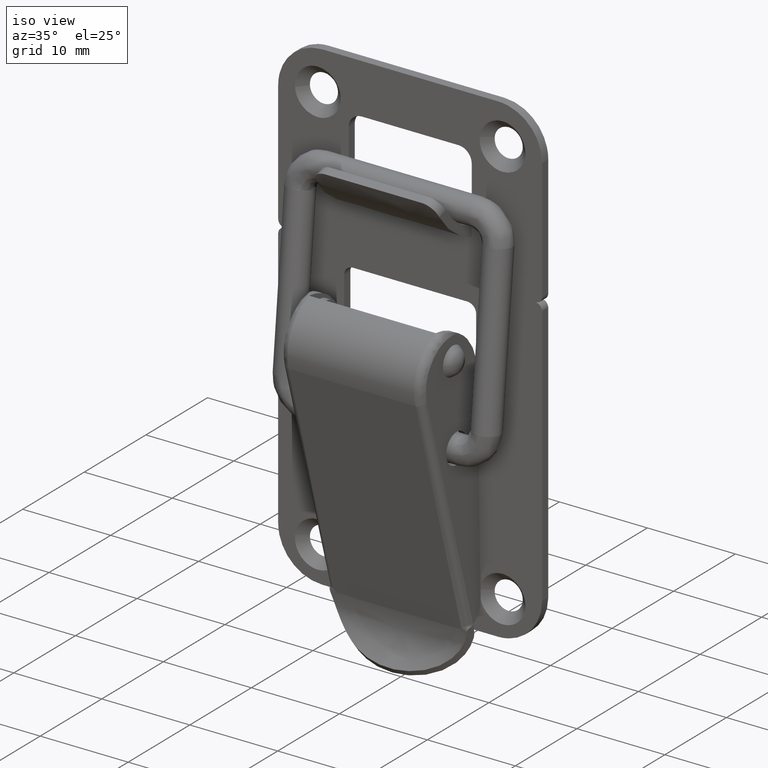
[diagram: clean part render]
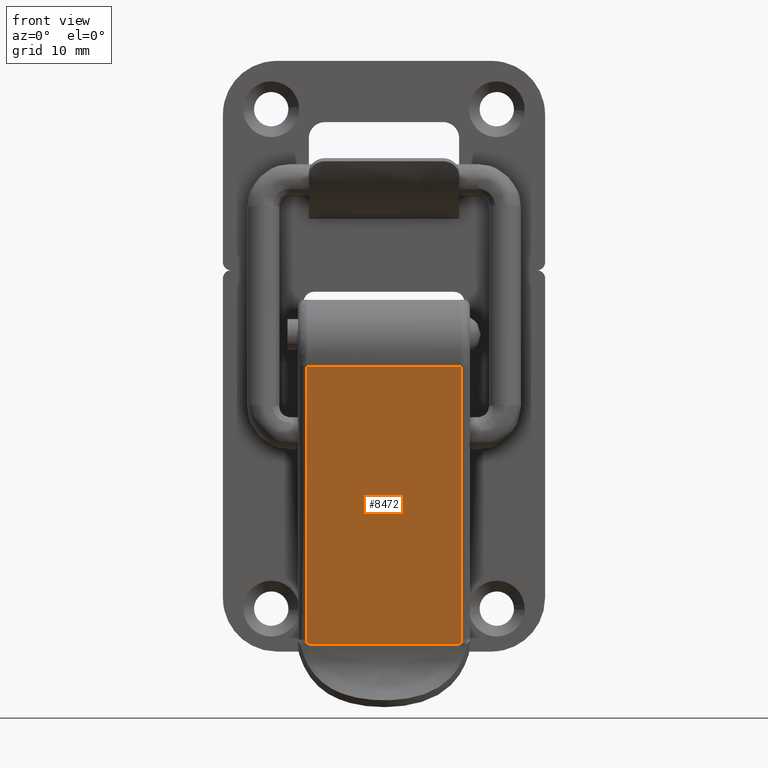
[diagram: tour spotlight — one face highlighted and labeled with its STEP entity id]
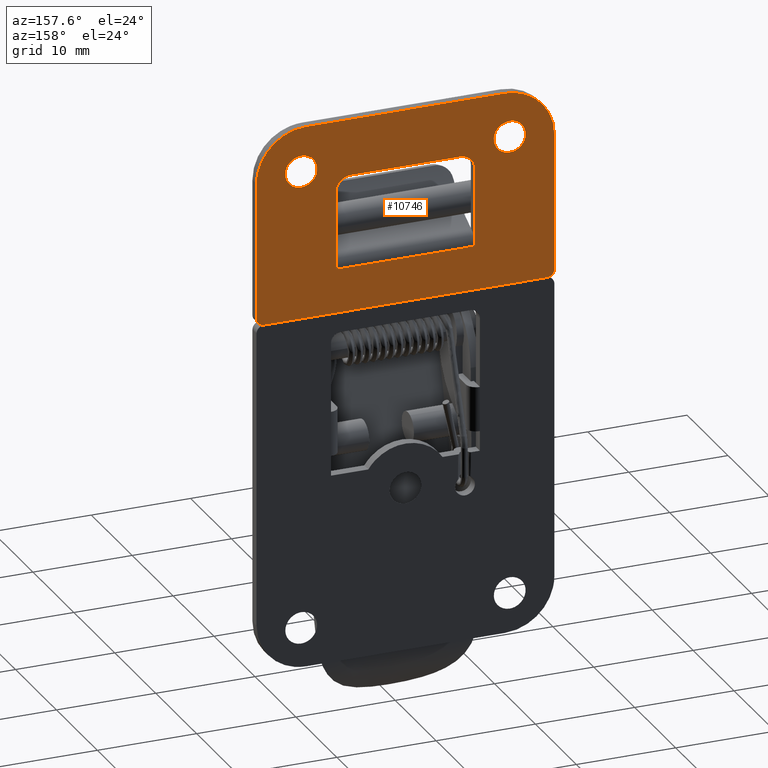
[diagram: tour spotlight — one face highlighted and labeled with its STEP entity id]
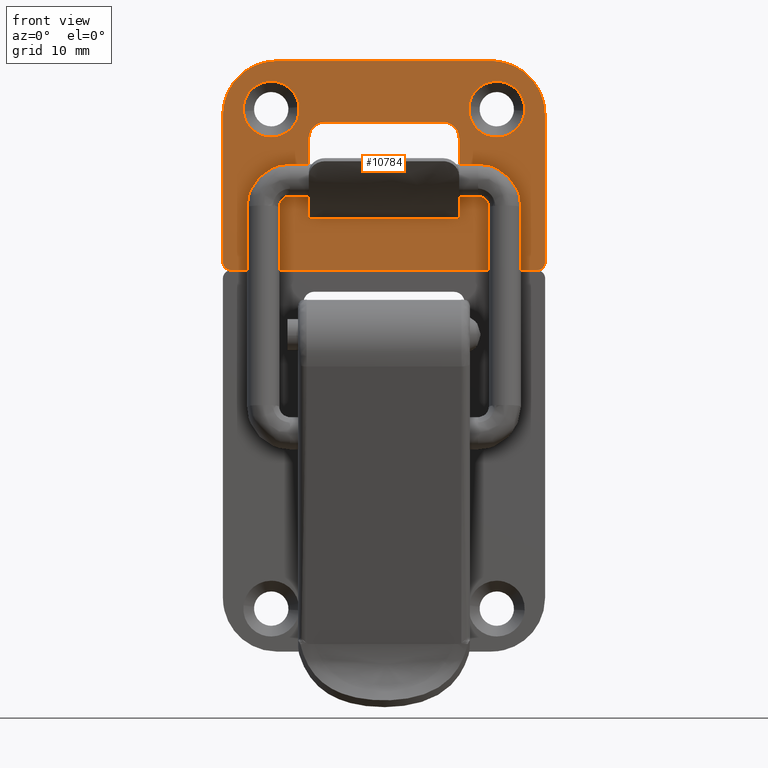
[diagram: tour spotlight — one face highlighted and labeled with its STEP entity id]
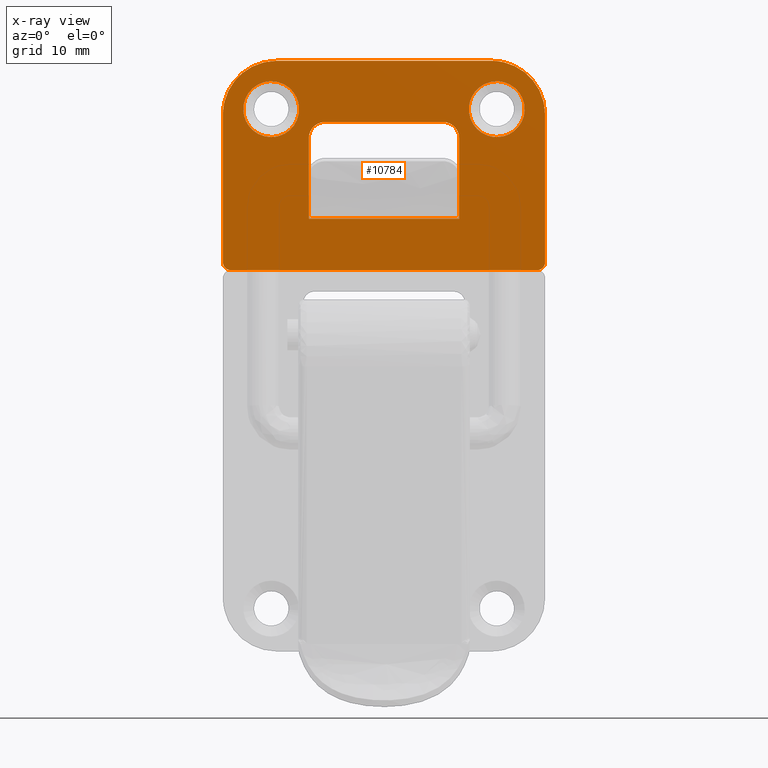
[diagram: x-ray of the same camera — body ghosted, this tour face saturated]
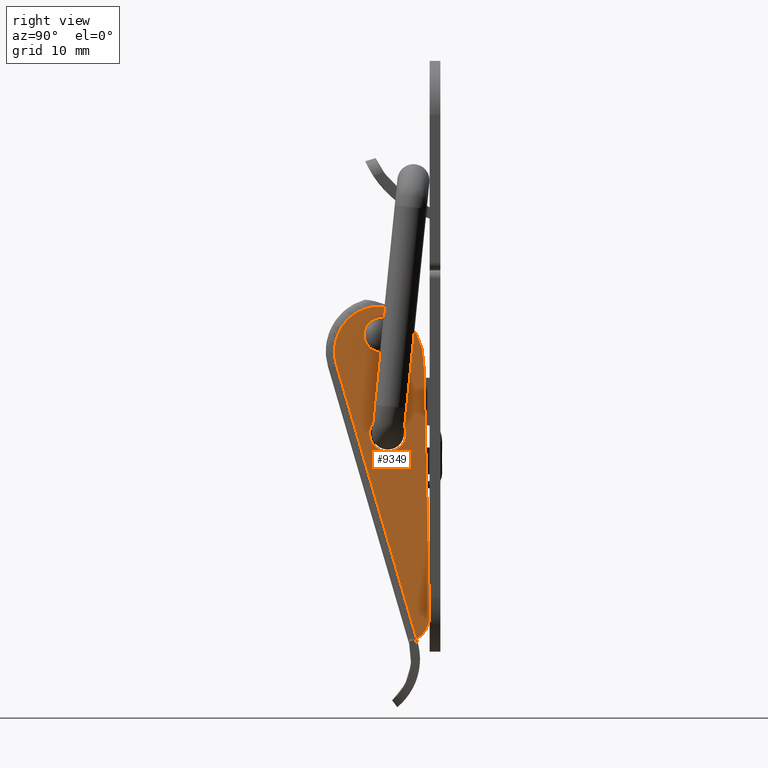
[diagram: tour spotlight — one face highlighted and labeled with its STEP entity id]
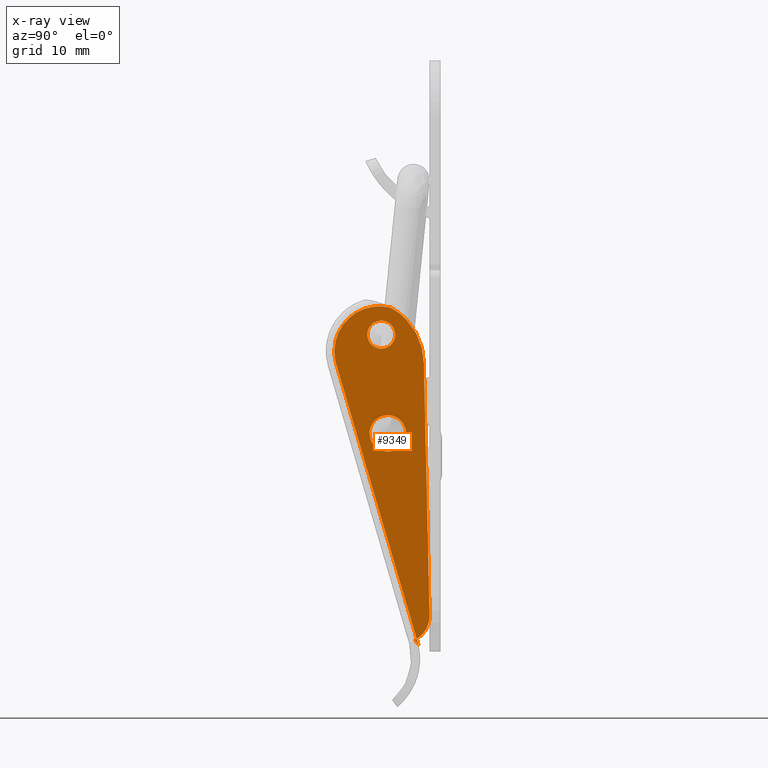
[diagram: x-ray of the same camera — body ghosted, this tour face saturated]
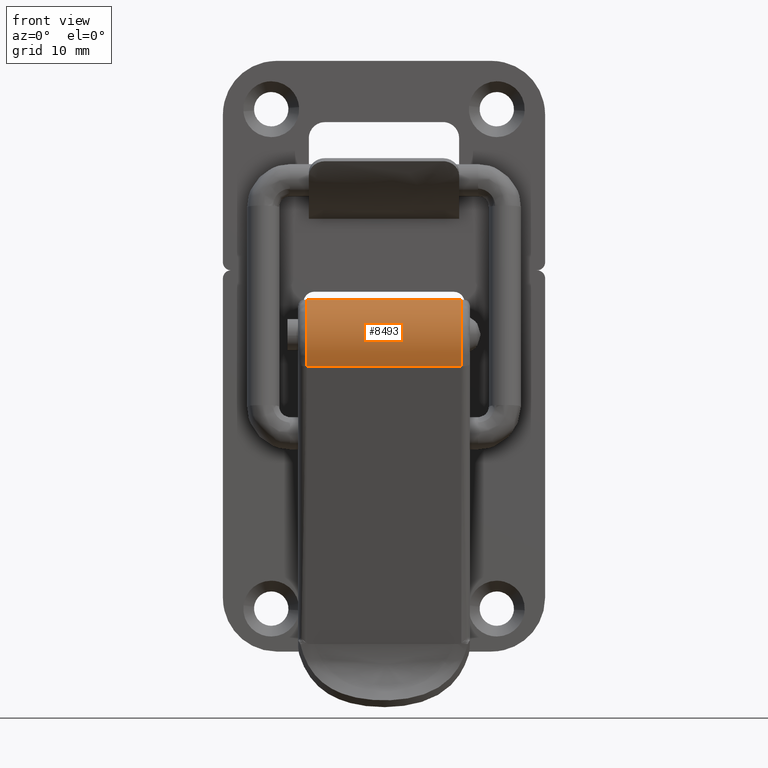
[diagram: tour spotlight — one face highlighted and labeled with its STEP entity id]
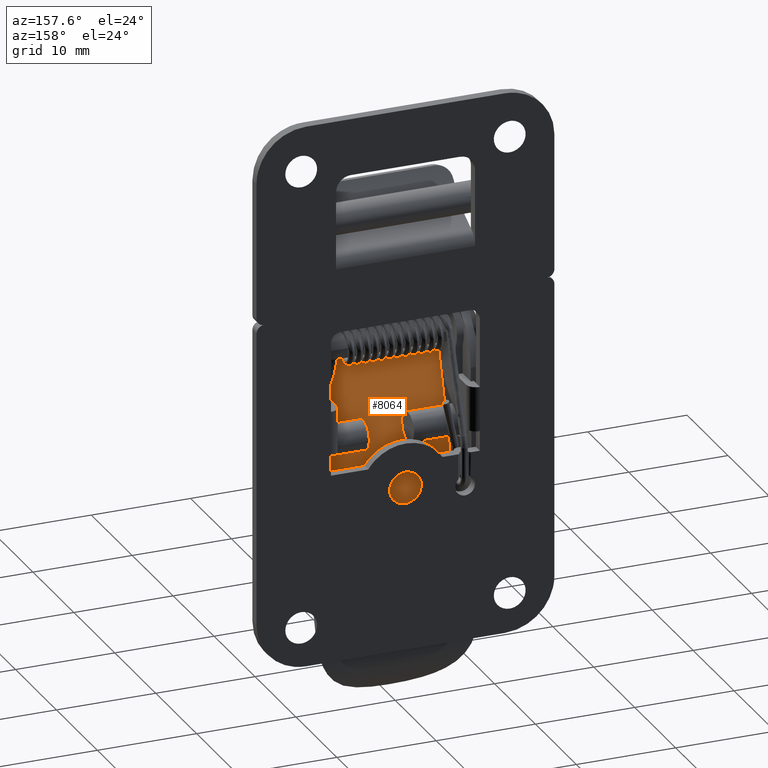
[diagram: tour spotlight — one face highlighted and labeled with its STEP entity id]
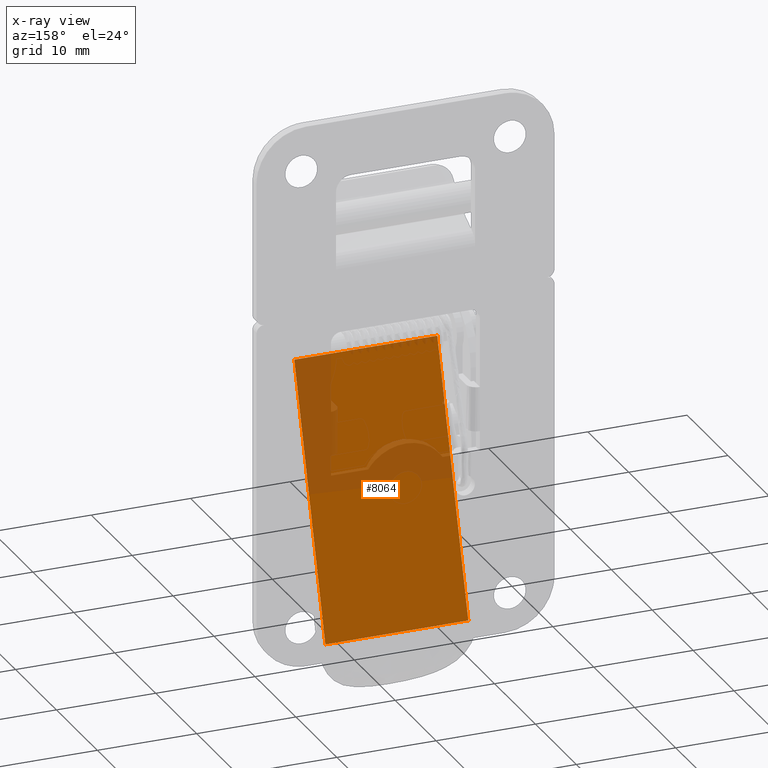
[diagram: x-ray of the same camera — body ghosted, this tour face saturated]
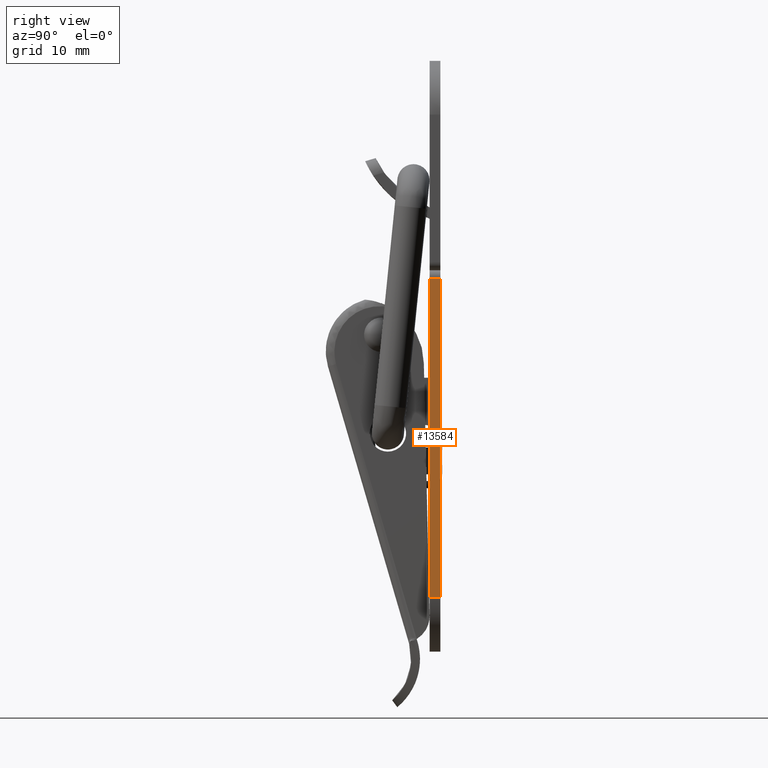
[diagram: tour spotlight — one face highlighted and labeled with its STEP entity id]
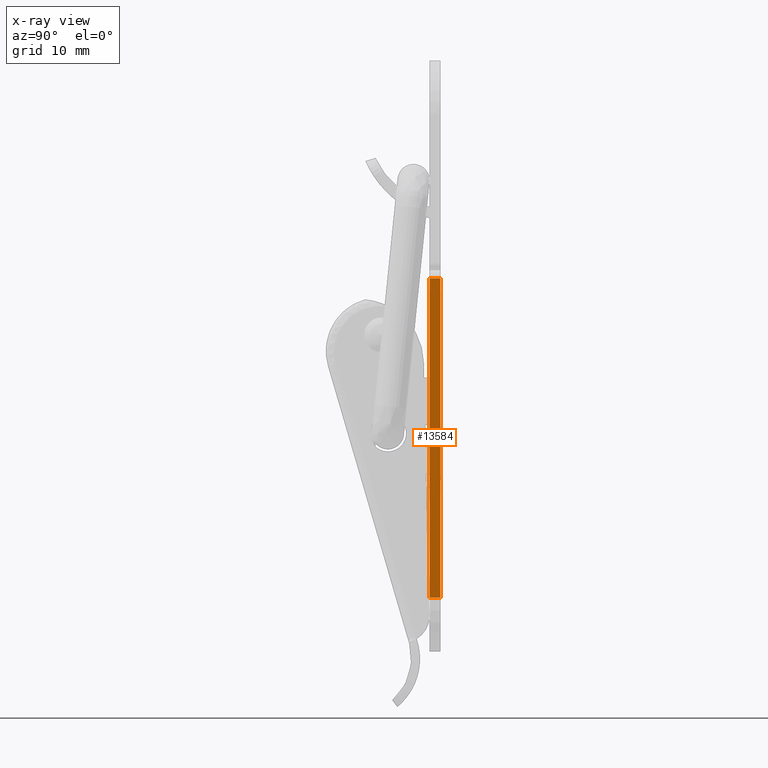
[diagram: x-ray of the same camera — body ghosted, this tour face saturated]
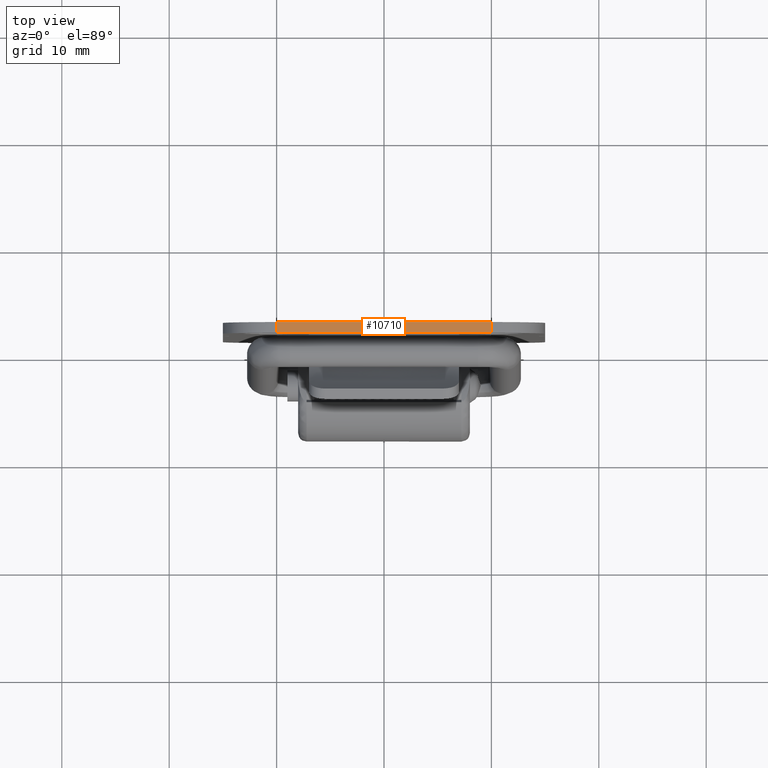
[diagram: tour spotlight — one face highlighted and labeled with its STEP entity id]
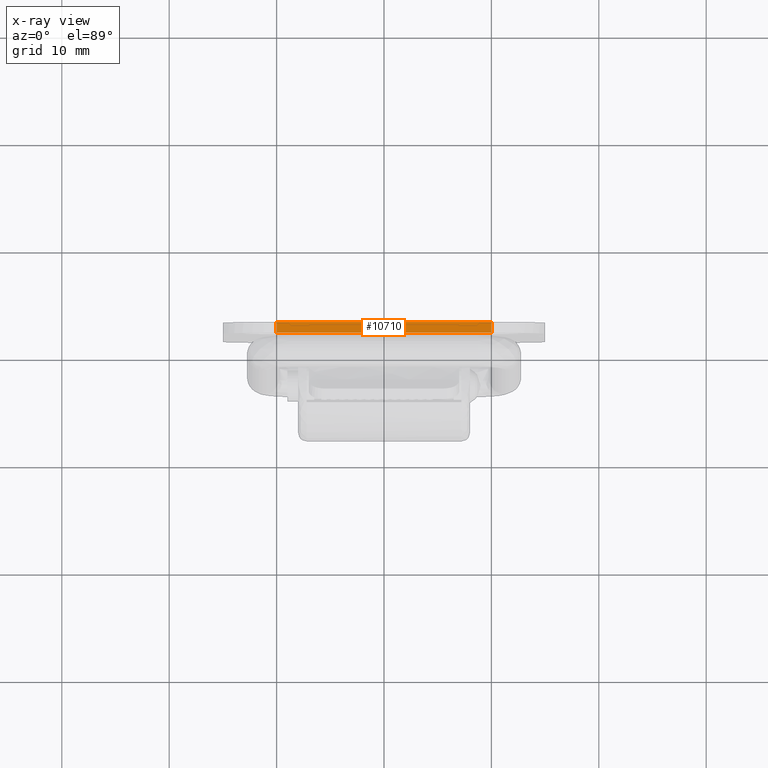
[diagram: x-ray of the same camera — body ghosted, this tour face saturated]
A machine part: a face-by-face anatomy tour. The part has 200 B-rep faces; the first image is the clean iso view, then the 8 largest visible faces are spotlighted one at a time (largest first), each with its STEP entity span.

Face 1 — front view, entity #8472. In plain terms, the highlighted face is a freeform B-spline surface patch.
Definition (entity closure, byte-faithful):
#7762=CARTESIAN_POINT('',(-7.962999999999999,-7.200000000000000,-17.334766999999900));
#7763=VERTEX_POINT('',#7762);
#7924=CARTESIAN_POINT('',(-7.962999999999999,7.200000000000000,-17.334766999999900));
#7925=VERTEX_POINT('',#7924);
#8177=CARTESIAN_POINT('',(-0.425434741834858,-7.200000000000000,-43.091852353962537));
#8178=VERTEX_POINT('',#8177);
#8179=CARTESIAN_POINT('',(-0.425434741834858,-7.200000000000000,-43.091852353962537));
#8180=CARTESIAN_POINT('',(-7.962999999999999,-7.200000000000000,-17.334766999999900));
#8181=QUASI_UNIFORM_CURVE('',1,(#8179,#8180),.UNSPECIFIED.,.F.,.U.);
#8182=EDGE_CURVE('',#8178,#7763,#8181,.T.);
#8239=CARTESIAN_POINT('',(-0.425434741834853,7.200000000000000,-43.091852353962537));
#8240=VERTEX_POINT('',#8239);
#8260=CARTESIAN_POINT('',(-7.962999999999999,7.200000000000000,-17.334766999999900));
#8261=CARTESIAN_POINT('',(-0.425434741834853,7.200000000000000,-43.091852353962537));
#8262=QUASI_UNIFORM_CURVE('',1,(#8260,#8261),.UNSPECIFIED.,.F.,.U.);
#8263=EDGE_CURVE('',#7925,#8240,#8262,.T.);
#8413=CARTESIAN_POINT('',(-8.340772047146981,-7.919279785466195,-16.043858526316640));
#8414=CARTESIAN_POINT('',(-0.022227976527755,-7.919279785466195,-44.469675392782399));
#8415=CARTESIAN_POINT('',(-8.340772047146981,7.919279270482064,-16.043858526316640));
#8416=CARTESIAN_POINT('',(-0.022227976527755,7.919279270482064,-44.469675392782399));
#8417=B_SPLINE_SURFACE_WITH_KNOTS('',1,1,((#8413,#8415),(#8414,#8416)),.UNSPECIFIED.,.F.,.F.,.U.,(2,2),(2,2),(0.0,29.617988452639441),(0.0,15.838559055948259),.UNSPECIFIED.);
#8418=CARTESIAN_POINT('',(-0.400000023674807,-6.826073099280410,-43.178766919099147));
#8419=VERTEX_POINT('',#8418);
#8420=CARTESIAN_POINT('',(-0.400000023674807,6.826073099280520,-43.178766919099147));
#8421=VERTEX_POINT('',#8420);
#8422=CARTESIAN_POINT('',(-0.400000023674807,-6.826073099280410,-43.178766919099147));
#8423=CARTESIAN_POINT('',(-0.400000023674807,6.826073099280520,-43.178766919099147));
#8424=QUASI_UNIFORM_CURVE('',1,(#8422,#8423),.UNSPECIFIED.,.F.,.U.);
#8425=EDGE_CURVE('',#8419,#8421,#8424,.T.);
#8426=ORIENTED_EDGE('',*,*,#8425,.F.);
#8427=CARTESIAN_POINT('',(-0.400000023674807,-6.826073099280410,-43.178766919099147));
#8428=CARTESIAN_POINT('',(-0.400000023675377,-6.858793819790097,-43.178766919097207));
#8429=CARTESIAN_POINT('',(-0.400270939406389,-6.891402650903625,-43.177841156019831));
#8430=CARTESIAN_POINT('',(-0.401618161827372,-6.956287683098887,-43.173237478081482));
#8431=CARTESIAN_POINT('',(-0.402688813805056,-6.988566219601802,-43.169578886290992));
#8432=CARTESIAN_POINT('',(-0.406122282373588,-7.052589622901446,-43.157846166248007));
#8433=CARTESIAN_POINT('',(-0.408522516874747,-7.084708964046486,-43.149644174915473));
#8434=CARTESIAN_POINT('',(-0.413595018300060,-7.130194128868968,-43.132310613255306));
#8435=CARTESIAN_POINT('',(-0.415531635115307,-7.144930271199399,-43.125692878894192));
#8436=CARTESIAN_POINT('',(-0.418890523204767,-7.166248436908077,-43.114215012467653));
#8437=CARTESIAN_POINT('',(-0.420086022536294,-7.173223121441702,-43.110129796981177));
#8438=CARTESIAN_POINT('',(-0.422643579493500,-7.186884090756128,-43.101390209251193));
#8439=CARTESIAN_POINT('',(-0.424036210156706,-7.193578776744818,-43.096631363970488));
#8440=CARTESIAN_POINT('',(-0.425434741834854,-7.200000000000000,-43.091852353962537));
#8441=B_SPLINE_CURVE_WITH_KNOTS('',3,(#8427,#8428,#8429,#8430,#8431,#8432,#8433,#8434,#8435,#8436,#8437,#8438,#8439,#8440),.UNSPECIFIED.,.F.,.U.,(4,2,2,2,2,2,4),(0.0,0.249999999999994,0.499999999999988,0.749999999999982,0.874999999999988,0.937499999999994,1.0),.UNSPECIFIED.);
#8442=EDGE_CURVE('',#8419,#8178,#8441,.T.);
#8443=ORIENTED_EDGE('',*,*,#8442,.T.);
#8444=ORIENTED_EDGE('',*,*,#8182,.T.);
#8445=CARTESIAN_POINT('',(-7.962999999999999,-7.200000000000000,-17.334766999999900));
#8446=CARTESIAN_POINT('',(-7.962999999999999,7.200000000000000,-17.334766999999900));
#8447=QUASI_UNIFORM_CURVE('',1,(#8445,#8446),.UNSPECIFIED.,.F.,.U.);
#8448=EDGE_CURVE('',#7763,#7925,#8447,.T.);
#8449=ORIENTED_EDGE('',*,*,#8448,.T.);
#8450=ORIENTED_EDGE('',*,*,#8263,.T.);
#8451=CARTESIAN_POINT('',(-0.425434741834864,7.200000000000000,-43.091852353962501));
#8452=CARTESIAN_POINT('',(-0.424040073025229,7.193596512731354,-43.096618163921001));
#8453=CARTESIAN_POINT('',(-0.422644241150698,7.186888426352395,-43.101387948261006));
#8454=CARTESIAN_POINT('',(-0.420080145709221,7.173190927660633,-43.110149879054291));
#8455=CARTESIAN_POINT('',(-0.418880318083086,7.166189136534245,-43.114249885026759));
#8456=CARTESIAN_POINT('',(-0.415506990046083,7.144762805969808,-43.125777095100588));
#8457=CARTESIAN_POINT('',(-0.413558928436526,7.129918642159953,-43.132433938183659));
#8458=CARTESIAN_POINT('',(-0.410156493093790,7.099311380160779,-43.144060612651167));
#8459=CARTESIAN_POINT('',(-0.408704435197346,7.083536305021679,-43.149022530445130));
#8460=CARTESIAN_POINT('',(-0.406250661527802,7.051996516793484,-43.157407473816221));
#8461=CARTESIAN_POINT('',(-0.405236635354563,7.036126387545906,-43.160872566031152));
#8462=CARTESIAN_POINT('',(-0.402679481136672,6.988287651118299,-43.169610777535453));
#8463=CARTESIAN_POINT('',(-0.401613054232415,6.956094567503337,-43.173254931563442));
#8464=CARTESIAN_POINT('',(-0.400270661469940,6.891336175702224,-43.177842105773848));
#8465=CARTESIAN_POINT('',(-0.400000023674808,6.858768358555030,-43.178766919099161));
#8466=CARTESIAN_POINT('',(-0.400000023674807,6.826073099280520,-43.178766919099147));
#8467=B_SPLINE_CURVE_WITH_KNOTS('',3,(#8451,#8452,#8453,#8454,#8455,#8456,#8457,#8458,#8459,#8460,#8461,#8462,#8463,#8464,#8465,#8466),.UNSPECIFIED.,.F.,.U.,(4,2,2,2,2,2,2,4),(0.0,0.062499999999998,0.124999999999996,0.249999999999992,0.374999999999988,0.499999999999984,0.749999999999992,1.0),.UNSPECIFIED.);
#8468=EDGE_CURVE('',#8240,#8421,#8467,.T.);
#8469=ORIENTED_EDGE('',*,*,#8468,.T.);
#8470=EDGE_LOOP('',(#8426,#8443,#8444,#8449,#8450,#8469));
#8471=FACE_OUTER_BOUND('',#8470,.T.);
#8472=ADVANCED_FACE('',(#8471),#8417,.F.);

Face 2 — auxiliary view, entity #10746. In plain terms, the highlighted face is a freeform B-spline surface patch.
Definition (entity closure, byte-faithful):
#9459=CARTESIAN_POINT('',(2.500000000000000,10.500000000000000,8.217233000000080));
#9460=VERTEX_POINT('',#9459);
#9461=CARTESIAN_POINT('',(2.499999999881800,8.904932265980154,6.742767554075952));
#9462=VERTEX_POINT('',#9461);
#9463=CARTESIAN_POINT('',(2.500000000000000,10.500000000000000,8.217233000000080));
#9464=CARTESIAN_POINT('',(2.500000000000000,9.020975215024885,8.217233000000080));
#9465=CARTESIAN_POINT('',(2.499999999881801,8.904932265980154,6.742767554075951));
#9473=(BOUNDED_CURVE()B_SPLINE_CURVE(2,(#9463,#9464,#9465),.UNSPECIFIED.,.F.,.U.)B_SPLINE_CURVE_WITH_KNOTS((3,3),(0.0,0.236331300438878),.UNSPECIFIED.)CURVE()GEOMETRIC_REPRESENTATION_ITEM()RATIONAL_B_SPLINE_CURVE((1.0,0.723120658832351,0.969723355767185))REPRESENTATION_ITEM(''));
#9474=EDGE_CURVE('',#9460,#9462,#9473,.T.);
#9515=CARTESIAN_POINT('',(2.499999999881799,12.095067734019850,6.491698445924207));
#9516=VERTEX_POINT('',#9515);
#9522=CARTESIAN_POINT('',(2.499999999881799,12.095067734019853,6.491698445924208));
#9523=CARTESIAN_POINT('',(2.500000000000000,12.100000000000009,6.554368827881577));
#9524=CARTESIAN_POINT('',(2.500000000000000,12.100000000000000,6.617233000000080));
#9525=CARTESIAN_POINT('',(2.500000000000000,12.099999999999998,8.217233000000080));
#9526=CARTESIAN_POINT('',(2.500000000000000,10.500000000000000,8.217233000000080));
#9534=(BOUNDED_CURVE()B_SPLINE_CURVE(2,(#9522,#9523,#9524,#9525,#9526),.UNSPECIFIED.,.F.,.U.)B_SPLINE_CURVE_WITH_KNOTS((3,2,3),(0.736331300438878,0.750000000000000,1.0),.UNSPECIFIED.)CURVE()GEOMETRIC_REPRESENTATION_ITEM()RATIONAL_B_SPLINE_CURVE((0.969723355767185,0.983986122354196,1.0,0.707106781186548,1.0))REPRESENTATION_ITEM(''));
#9535=EDGE_CURVE('',#9516,#9460,#9534,.T.);
#9558=CARTESIAN_POINT('',(2.500000000000000,10.500000000000000,5.017233000000080));
#9559=VERTEX_POINT('',#9558);
#9560=CARTESIAN_POINT('',(2.499999999881801,8.904932265980154,6.742767554075951));
#9561=CARTESIAN_POINT('',(2.499999999999999,8.900000000000000,6.680097172118582));
#9562=CARTESIAN_POINT('',(2.500000000000000,8.900000000000000,6.617233000000080));
#9563=CARTESIAN_POINT('',(2.500000000000000,8.900000000000002,5.017233000000079));
#9564=CARTESIAN_POINT('',(2.500000000000000,10.500000000000000,5.017233000000080));
#9572=(BOUNDED_CURVE()B_SPLINE_CURVE(2,(#9560,#9561,#9562,#9563,#9564),.UNSPECIFIED.,.F.,.U.)B_SPLINE_CURVE_WITH_KNOTS((3,2,3),(0.236331300438878,0.250000000000000,0.500000000000000),.UNSPECIFIED.)CURVE()GEOMETRIC_REPRESENTATION_ITEM()RATIONAL_B_SPLINE_CURVE((0.969723355767185,0.983986122354196,1.0,0.707106781186548,1.0))REPRESENTATION_ITEM(''));
#9573=EDGE_CURVE('',#9462,#9559,#9572,.T.);
#9575=CARTESIAN_POINT('',(2.500000000000000,10.500000000000000,5.017233000000080));
#9576=CARTESIAN_POINT('',(2.500000000000000,11.979024784975120,5.017233000000080));
#9577=CARTESIAN_POINT('',(2.499999999881799,12.095067734019848,6.491698445924206));
#9585=(BOUNDED_CURVE()B_SPLINE_CURVE(2,(#9575,#9576,#9577),.UNSPECIFIED.,.F.,.U.)B_SPLINE_CURVE_WITH_KNOTS((3,3),(0.500000000000000,0.736331300438879),.UNSPECIFIED.)CURVE()GEOMETRIC_REPRESENTATION_ITEM()RATIONAL_B_SPLINE_CURVE((1.0,0.723120658832351,0.969723355767186))REPRESENTATION_ITEM(''));
#9586=EDGE_CURVE('',#9559,#9516,#9585,.T.);
#9645=CARTESIAN_POINT('',(2.499999999986665,-8.911184757817409,6.806087775557772));
#9646=VERTEX_POINT('',#9645);
#9647=CARTESIAN_POINT('',(2.500000000000000,-10.500000000000000,5.017233000000080));
#9648=VERTEX_POINT('',#9647);
#9649=CARTESIAN_POINT('',(2.499999999986664,-8.911184757817409,6.806087775557772));
#9650=CARTESIAN_POINT('',(2.500000000000000,-8.900000000000000,6.711991591549555));
#9651=CARTESIAN_POINT('',(2.500000000000000,-8.900000000000000,6.617233000000080));
#9652=CARTESIAN_POINT('',(2.500000000000000,-8.900000000000002,5.017233000000079));
#9653=CARTESIAN_POINT('',(2.500000000000000,-10.500000000000000,5.017233000000080));
#9661=(BOUNDED_CURVE()B_SPLINE_CURVE(2,(#9649,#9650,#9651,#9652,#9653),.UNSPECIFIED.,.F.,.U.)B_SPLINE_CURVE_WITH_KNOTS((3,2,3),(0.229562473493241,0.250000000000000,0.500000000000000),.UNSPECIFIED.)CURVE()GEOMETRIC_REPRESENTATION_ITEM()RATIONAL_B_SPLINE_CURVE((0.956026754143975,0.976055948307401,1.0,0.707106781186548,1.0))REPRESENTATION_ITEM(''));
#9662=EDGE_CURVE('',#9646,#9648,#9661,.T.);
#9703=CARTESIAN_POINT('',(2.499999999892836,-12.097015677532760,6.519555335933495));
#9704=VERTEX_POINT('',#9703);
#9710=CARTESIAN_POINT('',(2.500000000000000,-10.500000000000000,5.017233000000080));
#9711=CARTESIAN_POINT('',(2.500000000000001,-12.005129705530294,5.017233000000079));
#9712=CARTESIAN_POINT('',(2.499999999892836,-12.097015677532761,6.519555335933495));
#9720=(BOUNDED_CURVE()B_SPLINE_CURVE(2,(#9710,#9711,#9712),.UNSPECIFIED.,.F.,.U.)B_SPLINE_CURVE_WITH_KNOTS((3,3),(0.500000000000000,0.739332962068177),.UNSPECIFIED.)CURVE()GEOMETRIC_REPRESENTATION_ITEM()RATIONAL_B_SPLINE_CURVE((1.0,0.719603993486775,0.976072041300734))REPRESENTATION_ITEM(''));
#9721=EDGE_CURVE('',#9648,#9704,#9720,.T.);
#9744=CARTESIAN_POINT('',(2.500000000000000,-10.500000000000000,8.217233000000080));
#9745=VERTEX_POINT('',#9744);
#9746=CARTESIAN_POINT('',(2.500000000000000,-10.500000000000000,8.217233000000080));
#9747=CARTESIAN_POINT('',(2.500000000000001,-9.078920758667517,8.217233000000080));
#9748=CARTESIAN_POINT('',(2.499999999986665,-8.911184757817409,6.806087775557772));
#9756=(BOUNDED_CURVE()B_SPLINE_CURVE(2,(#9746,#9747,#9748),.UNSPECIFIED.,.F.,.U.)B_SPLINE_CURVE_WITH_KNOTS((3,3),(0.0,0.229562473493241),.UNSPECIFIED.)CURVE()GEOMETRIC_REPRESENTATION_ITEM()RATIONAL_B_SPLINE_CURVE((1.0,0.731050832879147,0.956026754143975))REPRESENTATION_ITEM(''));
#9757=EDGE_CURVE('',#9745,#9646,#9756,.T.);
#9759=CARTESIAN_POINT('',(2.499999999892836,-12.097015677532761,6.519555335933495));
#9760=CARTESIAN_POINT('',(2.500000000000000,-12.100000000000003,6.568348577915812));
#9761=CARTESIAN_POINT('',(2.500000000000000,-12.100000000000000,6.617233000000080));
#9762=CARTESIAN_POINT('',(2.500000000000000,-12.099999999999998,8.217233000000080));
#9763=CARTESIAN_POINT('',(2.500000000000000,-10.500000000000000,8.217233000000080));
#9771=(BOUNDED_CURVE()B_SPLINE_CURVE(2,(#9759,#9760,#9761,#9762,#9763),.UNSPECIFIED.,.F.,.U.)B_SPLINE_CURVE_WITH_KNOTS((3,2,3),(0.739332962068176,0.750000000000000,1.0),.UNSPECIFIED.)CURVE()GEOMETRIC_REPRESENTATION_ITEM()RATIONAL_B_SPLINE_CURVE((0.976072041300732,0.987502787699772,1.0,0.707106781186548,1.0))REPRESENTATION_ITEM(''));
#9772=EDGE_CURVE('',#9704,#9745,#9771,.T.);
#9823=CARTESIAN_POINT('',(2.500000000000000,-6.999999999999890,-3.938974408524725));
#9824=VERTEX_POINT('',#9823);
#9840=CARTESIAN_POINT('',(2.500000000000000,7.000000000000110,-3.938974408524725));
#9841=VERTEX_POINT('',#9840);
#9842=CARTESIAN_POINT('',(2.500000000000000,7.000000000000110,-3.938974408524725));
#9843=CARTESIAN_POINT('',(2.500000000000000,-6.999999999999890,-3.938974408524725));
#9844=QUASI_UNIFORM_CURVE('',1,(#9842,#9843),.UNSPECIFIED.,.F.,.U.);
#9845=EDGE_CURVE('',#9841,#9824,#9844,.T.);
#10215=CARTESIAN_POINT('',(2.500000000000000,-6.999999999999901,3.917233000000095));
#10216=VERTEX_POINT('',#10215);
#10222=CARTESIAN_POINT('',(2.500000000000000,-6.999999999999901,3.917233000000095));
#10223=CARTESIAN_POINT('',(2.500000000000000,-6.999999999999890,-3.938974408524725));
#10224=QUASI_UNIFORM_CURVE('',1,(#10222,#10223),.UNSPECIFIED.,.F.,.U.);
#10225=EDGE_CURVE('',#10216,#9824,#10224,.T.);
#10260=CARTESIAN_POINT('',(2.499999999999945,-5.499999999999890,5.417233000000099));
#10261=VERTEX_POINT('',#10260);
#10267=CARTESIAN_POINT('',(2.500000000000000,-6.999999999999901,3.917233000000095));
#10268=CARTESIAN_POINT('',(2.499999999999945,-6.999999999999890,5.417233000000095));
#10269=CARTESIAN_POINT('',(2.499999999999945,-5.499999999999890,5.417233000000095));
#10277=(BOUNDED_CURVE()B_SPLINE_CURVE(2,(#10267,#10268,#10269),.UNSPECIFIED.,.F.,.U.)CURVE()GEOMETRIC_REPRESENTATION_ITEM()QUASI_UNIFORM_CURVE()RATIONAL_B_SPLINE_CURVE((1.0,0.707106781186548,1.0))REPRESENTATION_ITEM(''));
#10278=EDGE_CURVE('',#10216,#10261,#10277,.T.);
#10296=CARTESIAN_POINT('',(2.499999999999945,5.500000000000110,5.417233000000090));
#10297=VERTEX_POINT('',#10296);
#10303=CARTESIAN_POINT('',(2.499999999999945,5.500000000000110,5.417233000000090));
#10304=CARTESIAN_POINT('',(2.499999999999945,-5.499999999999890,5.417233000000099));
#10305=QUASI_UNIFORM_CURVE('',1,(#10303,#10304),.UNSPECIFIED.,.F.,.U.);
#10306=EDGE_CURVE('',#10297,#10261,#10305,.T.);
#10341=CARTESIAN_POINT('',(2.499999999999945,7.000000000000110,3.917233000000095));
#10342=VERTEX_POINT('',#10341);
#10348=CARTESIAN_POINT('',(2.499999999999945,5.500000000000110,5.417233000000095));
#10349=CARTESIAN_POINT('',(2.499999999999945,7.000000000000111,5.417233000000095));
#10350=CARTESIAN_POINT('',(2.499999999999945,7.000000000000110,3.917233000000095));
#10358=(BOUNDED_CURVE()B_SPLINE_CURVE(2,(#10348,#10349,#10350),.UNSPECIFIED.,.F.,.U.)CURVE()GEOMETRIC_REPRESENTATION_ITEM()QUASI_UNIFORM_CURVE()RATIONAL_B_SPLINE_CURVE((1.0,0.707106781186548,1.0))REPRESENTATION_ITEM(''));
#10359=EDGE_CURVE('',#10297,#10342,#10358,.T.);
#10376=CARTESIAN_POINT('',(2.500000000000000,7.000000000000110,-3.938974408524725));
#10377=CARTESIAN_POINT('',(2.499999999999945,7.000000000000110,3.917233000000095));
#10378=QUASI_UNIFORM_CURVE('',1,(#10376,#10377),.UNSPECIFIED.,.F.,.U.);
#10379=EDGE_CURVE('',#9841,#10342,#10378,.T.);
#10416=CARTESIAN_POINT('',(2.500000000000000,-14.249999999999879,-8.382766999999999));
#10417=VERTEX_POINT('',#10416);
#10423=CARTESIAN_POINT('',(2.500000000000000,-15.0,-7.632767000000000));
#10424=VERTEX_POINT('',#10423);
#10425=CARTESIAN_POINT('',(2.500000000000000,-15.0,-7.632767000000000));
#10426=CARTESIAN_POINT('',(2.500000000000000,-15.000000000000002,-7.943427171779857));
#10427=CARTESIAN_POINT('',(2.500000000000000,-14.780330085889871,-8.163097085889953));
#10428=CARTESIAN_POINT('',(2.500000000000000,-14.560660171779736,-8.382767000000051));
#10429=CARTESIAN_POINT('',(2.500000000000000,-14.249999999999879,-8.382767000000001));
#10437=(BOUNDED_CURVE()B_SPLINE_CURVE(2,(#10425,#10426,#10427,#10428,#10429),.UNSPECIFIED.,.F.,.U.)B_SPLINE_CURVE_WITH_KNOTS((3,2,3),(0.0,0.500000000000000,1.0),.UNSPECIFIED.)CURVE()GEOMETRIC_REPRESENTATION_ITEM()RATIONAL_B_SPLINE_CURVE((1.0,0.923879532511271,1.0,0.923879532511271,1.0))REPRESENTATION_ITEM(''));
#10438=EDGE_CURVE('',#10424,#10417,#10437,.T.);
#10479=CARTESIAN_POINT('',(2.500000000000000,15.0,-7.632767000000000));
#10480=VERTEX_POINT('',#10479);
#10486=CARTESIAN_POINT('',(2.500000000000000,14.250000000000000,-8.382766999999999));
#10487=VERTEX_POINT('',#10486);
#10488=CARTESIAN_POINT('',(2.500000000000000,14.250000000000000,-8.382767000000001));
#10489=CARTESIAN_POINT('',(2.500000000000000,15.000000000000009,-8.382767000000001));
#10490=CARTESIAN_POINT('',(2.500000000000000,15.0,-7.632767000000000));
#10498=(BOUNDED_CURVE()B_SPLINE_CURVE(2,(#10488,#10489,#10490),.UNSPECIFIED.,.F.,.U.)CURVE()GEOMETRIC_REPRESENTATION_ITEM()QUASI_UNIFORM_CURVE()RATIONAL_B_SPLINE_CURVE((1.0,0.707106781186548,1.0))REPRESENTATION_ITEM(''));
#10499=EDGE_CURVE('',#10487,#10480,#10498,.T.);
#10523=CARTESIAN_POINT('',(2.500000000000000,-10.0,11.117233000000001));
#10524=VERTEX_POINT('',#10523);
#10525=CARTESIAN_POINT('',(2.500000000000000,-15.0,6.117233000000000));
#10526=VERTEX_POINT('',#10525);
#10527=CARTESIAN_POINT('',(2.500000000000000,-10.0,11.117233000000001));
#10528=CARTESIAN_POINT('',(2.500000000000000,-14.999999999999897,11.117233000000001));
#10529=CARTESIAN_POINT('',(2.500000000000000,-15.0,6.117233000000000));
#10537=(BOUNDED_CURVE()B_SPLINE_CURVE(2,(#10527,#10528,#10529),.UNSPECIFIED.,.F.,.U.)CURVE()GEOMETRIC_REPRESENTATION_ITEM()QUASI_UNIFORM_CURVE()RATIONAL_B_SPLINE_CURVE((1.0,0.707106781186548,1.0))REPRESENTATION_ITEM(''));
#10538=EDGE_CURVE('',#10524,#10526,#10537,.T.);
#10584=CARTESIAN_POINT('',(2.500000000000000,15.0,6.117233000000000));
#10585=VERTEX_POINT('',#10584);
#10586=CARTESIAN_POINT('',(2.500000000000000,10.0,11.117233000000001));
#10587=VERTEX_POINT('',#10586);
#10588=CARTESIAN_POINT('',(2.500000000000000,15.0,6.117233000000000));
#10589=CARTESIAN_POINT('',(2.500000000000000,14.999999999999995,11.117233000000001));
#10590=CARTESIAN_POINT('',(2.500000000000000,10.0,11.117233000000001));
#10598=(BOUNDED_CURVE()B_SPLINE_CURVE(2,(#10588,#10589,#10590),.UNSPECIFIED.,.F.,.U.)CURVE()GEOMETRIC_REPRESENTATION_ITEM()QUASI_UNIFORM_CURVE()RATIONAL_B_SPLINE_CURVE((1.0,0.707106781186548,1.0))REPRESENTATION_ITEM(''));
#10599=EDGE_CURVE('',#10585,#10587,#10598,.T.);
#10636=CARTESIAN_POINT('',(2.500000000000000,15.0,-7.632767000000000));
#10637=CARTESIAN_POINT('',(2.500000000000000,15.0,6.117233000000000));
#10638=QUASI_UNIFORM_CURVE('',1,(#10636,#10637),.UNSPECIFIED.,.F.,.U.);
#10639=EDGE_CURVE('',#10480,#10585,#10638,.T.);
#10662=CARTESIAN_POINT('',(2.500000000000000,-15.0,-7.632767000000000));
#10663=CARTESIAN_POINT('',(2.500000000000000,-15.0,6.117233000000000));
#10664=QUASI_UNIFORM_CURVE('',1,(#10662,#10663),.UNSPECIFIED.,.F.,.U.);
#10665=EDGE_CURVE('',#10424,#10526,#10664,.T.);
#10682=CARTESIAN_POINT('',(2.500000000000000,-14.249999999999879,-8.382766999999999));
#10683=CARTESIAN_POINT('',(2.500000000000000,14.250000000000000,-8.382766999999999));
#10684=QUASI_UNIFORM_CURVE('',1,(#10682,#10683),.UNSPECIFIED.,.F.,.U.);
#10685=EDGE_CURVE('',#10417,#10487,#10684,.T.);
#10696=CARTESIAN_POINT('',(2.500000000000000,-10.0,11.117233000000001));
#10697=CARTESIAN_POINT('',(2.500000000000000,10.0,11.117233000000001));
#10698=QUASI_UNIFORM_CURVE('',1,(#10696,#10697),.UNSPECIFIED.,.F.,.U.);
#10699=EDGE_CURVE('',#10524,#10587,#10698,.T.);
#10711=CARTESIAN_POINT('',(2.500000000000000,-16.498499941854181,-9.356791779153170));
#10712=CARTESIAN_POINT('',(2.500000000000000,-16.498499941854181,12.091258476527511));
#10713=CARTESIAN_POINT('',(2.500000000000000,16.498500746516889,-9.356791779153170));
#10714=CARTESIAN_POINT('',(2.500000000000000,16.498500746516889,12.091258476527511));
#10715=B_SPLINE_SURFACE_WITH_KNOTS('',1,1,((#10711,#10713),(#10712,#10714)),.UNSPECIFIED.,.F.,.F.,.U.,(2,2),(2,2),(0.0,21.448050255680680),(0.0,32.997000688371060),.UNSPECIFIED.);
#10716=ORIENTED_EDGE('',*,*,#10685,.T.);
#10717=ORIENTED_EDGE('',*,*,#10499,.T.);
#10718=ORIENTED_EDGE('',*,*,#10639,.T.);
#10719=ORIENTED_EDGE('',*,*,#10599,.T.);
#10720=ORIENTED_EDGE('',*,*,#10699,.F.);
#10721=ORIENTED_EDGE('',*,*,#10538,.T.);
#10722=ORIENTED_EDGE('',*,*,#10665,.F.);
#10723=ORIENTED_EDGE('',*,*,#10438,.T.);
#10724=EDGE_LOOP('',(#10716,#10717,#10718,#10719,#10720,#10721,#10722,#10723));
#10725=FACE_OUTER_BOUND('',#10724,.T.);
#10726=ORIENTED_EDGE('',*,*,#10379,.F.);
#10727=ORIENTED_EDGE('',*,*,#9845,.T.);
#10728=ORIENTED_EDGE('',*,*,#10225,.F.);
#10729=ORIENTED_EDGE('',*,*,#10278,.T.);
#10730=ORIENTED_EDGE('',*,*,#10306,.F.);
#10731=ORIENTED_EDGE('',*,*,#10359,.T.);
#10732=EDGE_LOOP('',(#10726,#10727,#10728,#10729,#10730,#10731));
#10733=FACE_BOUND('',#10732,.T.);
#10734=ORIENTED_EDGE('',*,*,#9721,.T.);
#10735=ORIENTED_EDGE('',*,*,#9772,.T.);
#10736=ORIENTED_EDGE('',*,*,#9757,.T.);
#10737=ORIENTED_EDGE('',*,*,#9662,.T.);
#10738=EDGE_LOOP('',(#10734,#10735,#10736,#10737));
#10739=FACE_BOUND('',#10738,.T.);
#10740=ORIENTED_EDGE('',*,*,#9586,.F.);
#10741=ORIENTED_EDGE('',*,*,#9573,.F.);
#10742=ORIENTED_EDGE('',*,*,#9474,.F.);
#10743=ORIENTED_EDGE('',*,*,#9535,.F.);
#10744=EDGE_LOOP('',(#10740,#10741,#10742,#10743));
#10745=FACE_BOUND('',#10744,.T.);
#10746=ADVANCED_FACE('',(#10725,#10733,#10739,#10745),#10715,.F.);

Face 3 — front view, entity #10784. An x-ray twin of the same camera follows (body ghosted, this face saturated) — the face is partly hidden behind the body. In plain terms, the highlighted face is a freeform B-spline surface patch.
Definition (entity closure, byte-faithful):
#9476=CARTESIAN_POINT('',(1.499999999932651,7.908014932267178,6.821226649411660));
#9477=VERTEX_POINT('',#9476);
#9483=CARTESIAN_POINT('',(1.500000000000000,10.500000000000000,9.217233000000080));
#9484=VERTEX_POINT('',#9483);
#9485=CARTESIAN_POINT('',(1.500000000000000,10.500000000000000,9.217233000000080));
#9486=CARTESIAN_POINT('',(1.499999999999999,8.096584722644634,9.217233000000080));
#9487=CARTESIAN_POINT('',(1.499999999932651,7.908014932267179,6.821226649411660));
#9495=(BOUNDED_CURVE()B_SPLINE_CURVE(2,(#9485,#9486,#9487),.UNSPECIFIED.,.F.,.U.)B_SPLINE_CURVE_WITH_KNOTS((3,3),(0.0,0.236331300564792),.UNSPECIFIED.)CURVE()GEOMETRIC_REPRESENTATION_ITEM()RATIONAL_B_SPLINE_CURVE((1.0,0.723120658684834,0.969723356029957))REPRESENTATION_ITEM(''));
#9496=EDGE_CURVE('',#9484,#9477,#9495,.T.);
#9498=CARTESIAN_POINT('',(1.499999999932651,13.091985067732830,6.413239350588498));
#9499=VERTEX_POINT('',#9498);
#9500=CARTESIAN_POINT('',(1.499999999932651,13.091985067732827,6.413239350588498));
#9501=CARTESIAN_POINT('',(1.500000000000000,13.099999999999998,6.515078721263853));
#9502=CARTESIAN_POINT('',(1.500000000000000,13.100000000000000,6.617233000000080));
#9503=CARTESIAN_POINT('',(1.500000000000000,13.100000000000001,9.217233000000080));
#9504=CARTESIAN_POINT('',(1.500000000000000,10.500000000000000,9.217233000000080));
#9512=(BOUNDED_CURVE()B_SPLINE_CURVE(2,(#9500,#9501,#9502,#9503,#9504),.UNSPECIFIED.,.F.,.U.)B_SPLINE_CURVE_WITH_KNOTS((3,2,3),(0.736331300564792,0.750000000000000,1.0),.UNSPECIFIED.)CURVE()GEOMETRIC_REPRESENTATION_ITEM()RATIONAL_B_SPLINE_CURVE((0.969723356029957,0.983986122501713,1.0,0.707106781186548,1.0))REPRESENTATION_ITEM(''));
#9513=EDGE_CURVE('',#9499,#9484,#9512,.T.);
#9589=CARTESIAN_POINT('',(1.500000000000000,10.500000000000000,4.017233000000080));
#9590=VERTEX_POINT('',#9589);
#9591=CARTESIAN_POINT('',(1.500000000000000,10.500000000000000,4.017233000000080));
#9592=CARTESIAN_POINT('',(1.500000000000000,12.903415277355361,4.017233000000080));
#9593=CARTESIAN_POINT('',(1.499999999932651,13.091985067732827,6.413239350588497));
#9601=(BOUNDED_CURVE()B_SPLINE_CURVE(2,(#9591,#9592,#9593),.UNSPECIFIED.,.F.,.U.)B_SPLINE_CURVE_WITH_KNOTS((3,3),(0.500000000000000,0.736331300564792),.UNSPECIFIED.)CURVE()GEOMETRIC_REPRESENTATION_ITEM()RATIONAL_B_SPLINE_CURVE((1.0,0.723120658684835,0.969723356029956))REPRESENTATION_ITEM(''));
#9602=EDGE_CURVE('',#9590,#9499,#9601,.T.);
#9604=CARTESIAN_POINT('',(1.499999999932651,7.908014932267179,6.821226649411660));
#9605=CARTESIAN_POINT('',(1.500000000000000,7.900000000000000,6.719387278736305));
#9606=CARTESIAN_POINT('',(1.500000000000000,7.900000000000000,6.617233000000080));
#9607=CARTESIAN_POINT('',(1.500000000000000,7.900000000000000,4.017233000000080));
#9608=CARTESIAN_POINT('',(1.500000000000000,10.500000000000000,4.017233000000080));
#9616=(BOUNDED_CURVE()B_SPLINE_CURVE(2,(#9604,#9605,#9606,#9607,#9608),.UNSPECIFIED.,.F.,.U.)B_SPLINE_CURVE_WITH_KNOTS((3,2,3),(0.236331300564792,0.250000000000000,0.500000000000000),.UNSPECIFIED.)CURVE()GEOMETRIC_REPRESENTATION_ITEM()RATIONAL_B_SPLINE_CURVE((0.969723356029957,0.983986122501713,1.0,0.707106781186548,1.0))REPRESENTATION_ITEM(''));
#9617=EDGE_CURVE('',#9477,#9590,#9616,.T.);
#9664=CARTESIAN_POINT('',(1.499999999930919,-7.918175231449804,6.924122010653621));
#9665=VERTEX_POINT('',#9664);
#9671=CARTESIAN_POINT('',(1.500000000000000,-10.500000000000000,4.017233000000080));
#9672=VERTEX_POINT('',#9671);
#9673=CARTESIAN_POINT('',(1.499999999930920,-7.918175231449804,6.924122010653621));
#9674=CARTESIAN_POINT('',(1.499999999999999,-7.900000000000000,6.771215711638545));
#9675=CARTESIAN_POINT('',(1.500000000000000,-7.900000000000000,6.617233000000080));
#9676=CARTESIAN_POINT('',(1.500000000000000,-7.900000000000000,4.017233000000080));
#9677=CARTESIAN_POINT('',(1.500000000000000,-10.500000000000000,4.017233000000080));
#9685=(BOUNDED_CURVE()B_SPLINE_CURVE(2,(#9673,#9674,#9675,#9676,#9677),.UNSPECIFIED.,.F.,.U.)B_SPLINE_CURVE_WITH_KNOTS((3,2,3),(0.229562473445235,0.250000000000000,0.500000000000000),.UNSPECIFIED.)CURVE()GEOMETRIC_REPRESENTATION_ITEM()RATIONAL_B_SPLINE_CURVE((0.956026754049880,0.976055948251158,1.0,0.707106781186548,1.0))REPRESENTATION_ITEM(''));
#9686=EDGE_CURVE('',#9665,#9672,#9685,.T.);
#9688=CARTESIAN_POINT('',(1.499999999926366,-13.095150475936340,6.458506796649003));
#9689=VERTEX_POINT('',#9688);
#9690=CARTESIAN_POINT('',(1.500000000000000,-10.500000000000000,4.017233000000080));
#9691=CARTESIAN_POINT('',(1.500000000000000,-12.945835772904916,4.017233000000079));
#9692=CARTESIAN_POINT('',(1.499999999926367,-13.095150475936336,6.458506796649004));
#9700=(BOUNDED_CURVE()B_SPLINE_CURVE(2,(#9690,#9691,#9692),.UNSPECIFIED.,.F.,.U.)B_SPLINE_CURVE_WITH_KNOTS((3,3),(0.500000000000000,0.739332962168040),.UNSPECIFIED.)CURVE()GEOMETRIC_REPRESENTATION_ITEM()RATIONAL_B_SPLINE_CURVE((1.0,0.719603993369779,0.976072041514758))REPRESENTATION_ITEM(''));
#9701=EDGE_CURVE('',#9672,#9689,#9700,.T.);
#9775=CARTESIAN_POINT('',(1.500000000000000,-10.500000000000000,9.217233000000080));
#9776=VERTEX_POINT('',#9775);
#9777=CARTESIAN_POINT('',(1.499999999926366,-13.095150475936345,6.458506796649003));
#9778=CARTESIAN_POINT('',(1.500000000000001,-13.100000000000005,6.537795814866237));
#9779=CARTESIAN_POINT('',(1.500000000000000,-13.100000000000000,6.617233000000080));
#9780=CARTESIAN_POINT('',(1.500000000000000,-13.100000000000001,9.217233000000080));
#9781=CARTESIAN_POINT('',(1.500000000000000,-10.500000000000000,9.217233000000080));
#9789=(BOUNDED_CURVE()B_SPLINE_CURVE(2,(#9777,#9778,#9779,#9780,#9781),.UNSPECIFIED.,.F.,.U.)B_SPLINE_CURVE_WITH_KNOTS((3,2,3),(0.739332962168040,0.750000000000000,1.0),.UNSPECIFIED.)CURVE()GEOMETRIC_REPRESENTATION_ITEM()RATIONAL_B_SPLINE_CURVE((0.976072041514759,0.987502787816769,1.0,0.707106781186548,1.0))REPRESENTATION_ITEM(''));
#9790=EDGE_CURVE('',#9689,#9776,#9789,.T.);
#9792=CARTESIAN_POINT('',(1.500000000000000,-10.500000000000000,9.217233000000080));
#9793=CARTESIAN_POINT('',(1.500000000000001,-8.190746233495286,9.217233000000080));
#9794=CARTESIAN_POINT('',(1.499999999930919,-7.918175231449804,6.924122010653621));
#9802=(BOUNDED_CURVE()B_SPLINE_CURVE(2,(#9792,#9793,#9794),.UNSPECIFIED.,.F.,.U.)B_SPLINE_CURVE_WITH_KNOTS((3,3),(0.0,0.229562473445235),.UNSPECIFIED.)CURVE()GEOMETRIC_REPRESENTATION_ITEM()RATIONAL_B_SPLINE_CURVE((1.0,0.731050832935390,0.956026754049881))REPRESENTATION_ITEM(''));
#9803=EDGE_CURVE('',#9776,#9665,#9802,.T.);
#9825=CARTESIAN_POINT('',(1.500000000000000,-6.999999999999901,-2.524760846151630));
#9826=VERTEX_POINT('',#9825);
#9847=CARTESIAN_POINT('',(1.500000000000000,7.000000000000120,-2.524760846151630));
#9848=VERTEX_POINT('',#9847);
#10054=CARTESIAN_POINT('',(1.500000000000000,7.000000000000120,-3.582784458965905));
#10055=VERTEX_POINT('',#10054);
#10083=CARTESIAN_POINT('',(1.500000000000000,7.000000000000120,-3.582784458965905));
#10084=CARTESIAN_POINT('',(1.500000000000000,7.000000000000120,-2.524760846151630));
#10085=QUASI_UNIFORM_CURVE('',1,(#10083,#10084),.UNSPECIFIED.,.F.,.U.);
#10086=EDGE_CURVE('',#10055,#9848,#10085,.T.);
#10110=CARTESIAN_POINT('',(1.500000000000000,-6.999999999999901,-3.582784458965905));
#10111=VERTEX_POINT('',#10110);
#10125=CARTESIAN_POINT('',(1.500000000000000,-6.999999999999901,-3.582784458965905));
#10126=CARTESIAN_POINT('',(1.500000000000000,-6.999999999999901,-2.524760846151630));
#10127=QUASI_UNIFORM_CURVE('',1,(#10125,#10126),.UNSPECIFIED.,.F.,.U.);
#10128=EDGE_CURVE('',#10111,#9826,#10127,.T.);
#10195=CARTESIAN_POINT('',(1.500000000000000,-6.999999999999901,-3.582784458965905));
#10196=CARTESIAN_POINT('',(1.500000000000000,7.000000000000120,-3.582784458965905));
#10197=QUASI_UNIFORM_CURVE('',1,(#10195,#10196),.UNSPECIFIED.,.F.,.U.);
#10198=EDGE_CURVE('',#10111,#10055,#10197,.T.);
#10208=CARTESIAN_POINT('',(1.500000000000055,-6.999999999999890,3.917233000000095));
#10209=VERTEX_POINT('',#10208);
#10210=CARTESIAN_POINT('',(1.500000000000055,-6.999999999999890,3.917233000000095));
#10211=CARTESIAN_POINT('',(1.500000000000000,-6.999999999999901,-2.524760846151630));
#10212=QUASI_UNIFORM_CURVE('',1,(#10210,#10211),.UNSPECIFIED.,.F.,.U.);
#10213=EDGE_CURVE('',#10209,#9826,#10212,.T.);
#10245=CARTESIAN_POINT('',(1.500000000000055,-5.499999999999890,5.417233000000099));
#10246=VERTEX_POINT('',#10245);
#10247=CARTESIAN_POINT('',(1.500000000000055,-6.999999999999890,3.917233000000095));
#10248=CARTESIAN_POINT('',(1.500000000000055,-6.999999999999890,5.417233000000095));
#10249=CARTESIAN_POINT('',(1.500000000000055,-5.499999999999890,5.417233000000095));
#10257=(BOUNDED_CURVE()B_SPLINE_CURVE(2,(#10247,#10248,#10249),.UNSPECIFIED.,.F.,.U.)CURVE()GEOMETRIC_REPRESENTATION_ITEM()QUASI_UNIFORM_CURVE()RATIONAL_B_SPLINE_CURVE((1.0,0.707106781186548,1.0))REPRESENTATION_ITEM(''));
#10258=EDGE_CURVE('',#10209,#10246,#10257,.T.);
#10289=CARTESIAN_POINT('',(1.500000000000055,5.500000000000110,5.417233000000090));
#10290=VERTEX_POINT('',#10289);
#10291=CARTESIAN_POINT('',(1.500000000000055,5.500000000000110,5.417233000000090));
#10292=CARTESIAN_POINT('',(1.500000000000055,-5.499999999999890,5.417233000000099));
#10293=QUASI_UNIFORM_CURVE('',1,(#10291,#10292),.UNSPECIFIED.,.F.,.U.);
#10294=EDGE_CURVE('',#10290,#10246,#10293,.T.);
#10326=CARTESIAN_POINT('',(1.500000000000055,7.000000000000110,3.917233000000095));
#10327=VERTEX_POINT('',#10326);
#10328=CARTESIAN_POINT('',(1.500000000000055,5.500000000000110,5.417233000000095));
#10329=CARTESIAN_POINT('',(1.500000000000055,7.000000000000111,5.417233000000095));
#10330=CARTESIAN_POINT('',(1.500000000000055,7.000000000000110,3.917233000000095));
#10338=(BOUNDED_CURVE()B_SPLINE_CURVE(2,(#10328,#10329,#10330),.UNSPECIFIED.,.F.,.U.)CURVE()GEOMETRIC_REPRESENTATION_ITEM()QUASI_UNIFORM_CURVE()RATIONAL_B_SPLINE_CURVE((1.0,0.707106781186548,1.0))REPRESENTATION_ITEM(''));
#10339=EDGE_CURVE('',#10290,#10327,#10338,.T.);
#10370=CARTESIAN_POINT('',(1.500000000000000,7.000000000000120,-2.524760846151630));
#10371=CARTESIAN_POINT('',(1.500000000000055,7.000000000000110,3.917233000000095));
#10372=QUASI_UNIFORM_CURVE('',1,(#10370,#10371),.UNSPECIFIED.,.F.,.U.);
#10373=EDGE_CURVE('',#9848,#10327,#10372,.T.);
#10399=CARTESIAN_POINT('',(1.500000000000000,-14.249999999999879,-8.382766999999999));
#10400=VERTEX_POINT('',#10399);
#10401=CARTESIAN_POINT('',(1.500000000000000,-15.0,-7.632767000000000));
#10402=VERTEX_POINT('',#10401);
#10403=CARTESIAN_POINT('',(1.500000000000000,-14.249999999999879,-8.382766999999999));
#10404=CARTESIAN_POINT('',(1.500000000000000,-15.000000000000009,-8.382767000000001));
#10405=CARTESIAN_POINT('',(1.500000000000000,-15.0,-7.632767000000000));
#10413=(BOUNDED_CURVE()B_SPLINE_CURVE(2,(#10403,#10404,#10405),.UNSPECIFIED.,.F.,.U.)CURVE()GEOMETRIC_REPRESENTATION_ITEM()QUASI_UNIFORM_CURVE()RATIONAL_B_SPLINE_CURVE((1.0,0.707106781186548,1.0))REPRESENTATION_ITEM(''));
#10414=EDGE_CURVE('',#10400,#10402,#10413,.T.);
#10462=CARTESIAN_POINT('',(1.500000000000000,15.0,-7.632767000000000));
#10463=VERTEX_POINT('',#10462);
#10464=CARTESIAN_POINT('',(1.500000000000000,14.250000000000000,-8.382766999999999));
#10465=VERTEX_POINT('',#10464);
#10466=CARTESIAN_POINT('',(1.500000000000000,15.0,-7.632767000000000));
#10467=CARTESIAN_POINT('',(1.500000000000000,15.000000000000009,-8.382767000000001));
#10468=CARTESIAN_POINT('',(1.500000000000000,14.250000000000000,-8.382767000000001));
#10476=(BOUNDED_CURVE()B_SPLINE_CURVE(2,(#10466,#10467,#10468),.UNSPECIFIED.,.F.,.U.)CURVE()GEOMETRIC_REPRESENTATION_ITEM()QUASI_UNIFORM_CURVE()RATIONAL_B_SPLINE_CURVE((1.0,0.707106781186548,1.0))REPRESENTATION_ITEM(''));
#10477=EDGE_CURVE('',#10463,#10465,#10476,.T.);
#10540=CARTESIAN_POINT('',(1.500000000000000,-10.0,11.117233000000001));
#10541=VERTEX_POINT('',#10540);
#10547=CARTESIAN_POINT('',(1.500000000000000,-15.0,6.117233000000000));
#10548=VERTEX_POINT('',#10547);
#10549=CARTESIAN_POINT('',(1.500000000000000,-15.0,6.117233000000000));
#10550=CARTESIAN_POINT('',(1.500000000000000,-14.999999999999897,11.117233000000001));
#10551=CARTESIAN_POINT('',(1.500000000000000,-10.0,11.117233000000001));
#10559=(BOUNDED_CURVE()B_SPLINE_CURVE(2,(#10549,#10550,#10551),.UNSPECIFIED.,.F.,.U.)CURVE()GEOMETRIC_REPRESENTATION_ITEM()QUASI_UNIFORM_CURVE()RATIONAL_B_SPLINE_CURVE((1.0,0.707106781186548,1.0))REPRESENTATION_ITEM(''));
#10560=EDGE_CURVE('',#10548,#10541,#10559,.T.);
#10601=CARTESIAN_POINT('',(1.500000000000000,15.0,6.117233000000000));
#10602=VERTEX_POINT('',#10601);
#10608=CARTESIAN_POINT('',(1.500000000000000,10.0,11.117233000000001));
#10609=VERTEX_POINT('',#10608);
#10610=CARTESIAN_POINT('',(1.500000000000000,10.0,11.117233000000001));
#10611=CARTESIAN_POINT('',(1.500000000000000,14.999999999999995,11.117233000000001));
#10612=CARTESIAN_POINT('',(1.500000000000000,15.0,6.117233000000000));
#10620=(BOUNDED_CURVE()B_SPLINE_CURVE(2,(#10610,#10611,#10612),.UNSPECIFIED.,.F.,.U.)CURVE()GEOMETRIC_REPRESENTATION_ITEM()QUASI_UNIFORM_CURVE()RATIONAL_B_SPLINE_CURVE((1.0,0.707106781186548,1.0))REPRESENTATION_ITEM(''));
#10621=EDGE_CURVE('',#10609,#10602,#10620,.T.);
#10642=CARTESIAN_POINT('',(1.500000000000000,15.0,6.117233000000000));
#10643=CARTESIAN_POINT('',(1.500000000000000,15.0,-7.632767000000000));
#10644=QUASI_UNIFORM_CURVE('',1,(#10642,#10643),.UNSPECIFIED.,.F.,.U.);
#10645=EDGE_CURVE('',#10602,#10463,#10644,.T.);
#10656=CARTESIAN_POINT('',(1.500000000000000,-15.0,6.117233000000000));
#10657=CARTESIAN_POINT('',(1.500000000000000,-15.0,-7.632767000000000));
#10658=QUASI_UNIFORM_CURVE('',1,(#10656,#10657),.UNSPECIFIED.,.F.,.U.);
#10659=EDGE_CURVE('',#10548,#10402,#10658,.T.);
#10676=CARTESIAN_POINT('',(1.500000000000000,-14.249999999999879,-8.382766999999999));
#10677=CARTESIAN_POINT('',(1.500000000000000,14.250000000000000,-8.382766999999999));
#10678=QUASI_UNIFORM_CURVE('',1,(#10676,#10677),.UNSPECIFIED.,.F.,.U.);
#10679=EDGE_CURVE('',#10400,#10465,#10678,.T.);
#10702=CARTESIAN_POINT('',(1.500000000000000,-10.0,11.117233000000001));
#10703=CARTESIAN_POINT('',(1.500000000000000,10.0,11.117233000000001));
#10704=QUASI_UNIFORM_CURVE('',1,(#10702,#10703),.UNSPECIFIED.,.F.,.U.);
#10705=EDGE_CURVE('',#10541,#10609,#10704,.T.);
#10747=CARTESIAN_POINT('',(1.500000000000000,-16.498499941854181,12.091258258641620));
#10748=CARTESIAN_POINT('',(1.500000000000000,-16.498499941854181,-9.356791038236514));
#10749=CARTESIAN_POINT('',(1.500000000000000,16.498500746516889,12.091258258641620));
#10750=CARTESIAN_POINT('',(1.500000000000000,16.498500746516889,-9.356791038236514));
#10751=B_SPLINE_SURFACE_WITH_KNOTS('',1,1,((#10747,#10749),(#10748,#10750)),.UNSPECIFIED.,.F.,.F.,.U.,(2,2),(2,2),(0.0,21.448049296878128),(0.0,32.997000688371060),.UNSPECIFIED.);
#10752=ORIENTED_EDGE('',*,*,#10645,.T.);
#10753=ORIENTED_EDGE('',*,*,#10477,.T.);
#10754=ORIENTED_EDGE('',*,*,#10679,.F.);
#10755=ORIENTED_EDGE('',*,*,#10414,.T.);
#10756=ORIENTED_EDGE('',*,*,#10659,.F.);
#10757=ORIENTED_EDGE('',*,*,#10560,.T.);
#10758=ORIENTED_EDGE('',*,*,#10705,.T.);
#10759=ORIENTED_EDGE('',*,*,#10621,.T.);
#10760=EDGE_LOOP('',(#10752,#10753,#10754,#10755,#10756,#10757,#10758,#10759));
#10761=FACE_OUTER_BOUND('',#10760,.T.);
#10762=ORIENTED_EDGE('',*,*,#10198,.T.);
#10763=ORIENTED_EDGE('',*,*,#10086,.T.);
#10764=ORIENTED_EDGE('',*,*,#10373,.T.);
#10765=ORIENTED_EDGE('',*,*,#10339,.F.);
#10766=ORIENTED_EDGE('',*,*,#10294,.T.);
#10767=ORIENTED_EDGE('',*,*,#10258,.F.);
#10768=ORIENTED_EDGE('',*,*,#10213,.T.);
#10769=ORIENTED_EDGE('',*,*,#10128,.F.);
#10770=EDGE_LOOP('',(#10762,#10763,#10764,#10765,#10766,#10767,#10768,#10769));
#10771=FACE_BOUND('',#10770,.T.);
#10772=ORIENTED_EDGE('',*,*,#9701,.F.);
#10773=ORIENTED_EDGE('',*,*,#9686,.F.);
#10774=ORIENTED_EDGE('',*,*,#9803,.F.);
#10775=ORIENTED_EDGE('',*,*,#9790,.F.);
#10776=EDGE_LOOP('',(#10772,#10773,#10774,#10775));
#10777=FACE_BOUND('',#10776,.T.);
#10778=ORIENTED_EDGE('',*,*,#9602,.T.);
#10779=ORIENTED_EDGE('',*,*,#9513,.T.);
#10780=ORIENTED_EDGE('',*,*,#9496,.T.);
#10781=ORIENTED_EDGE('',*,*,#9617,.T.);
#10782=EDGE_LOOP('',(#10778,#10779,#10780,#10781));
#10783=FACE_BOUND('',#10782,.T.);
#10784=ADVANCED_FACE('',(#10761,#10771,#10777,#10783),#10751,.F.);

Face 4 — right view, entity #9349. An x-ray twin of the same camera follows (body ghosted, this face saturated) — the face is partly hidden behind the body. In plain terms, the highlighted face is a freeform B-spline surface patch.
Definition (entity closure, byte-faithful):
#6667=CARTESIAN_POINT('',(-4.088935269206415,-8.0,-23.555931889358110));
#6668=VERTEX_POINT('',#6667);
#6674=CARTESIAN_POINT('',(-2.388999999999895,-8.0,-25.270766999999900));
#6675=VERTEX_POINT('',#6674);
#6676=CARTESIAN_POINT('',(-4.088935269206415,-8.0,-23.555931889358114));
#6677=CARTESIAN_POINT('',(-4.088999999999895,-8.000000000000002,-23.563349303310147));
#6678=CARTESIAN_POINT('',(-4.088999999999895,-8.0,-23.570766999999901));
#6679=CARTESIAN_POINT('',(-4.088999999999896,-8.0,-25.270766999999903));
#6680=CARTESIAN_POINT('',(-2.388999999999895,-8.0,-25.270766999999900));
#6688=(BOUNDED_CURVE()B_SPLINE_CURVE(2,(#6676,#6677,#6678,#6679,#6680),.UNSPECIFIED.,.F.,.U.)B_SPLINE_CURVE_WITH_KNOTS((3,2,3),(0.248460105603972,0.250000000000000,0.500000000000000),.UNSPECIFIED.)CURVE()GEOMETRIC_REPRESENTATION_ITEM()RATIONAL_B_SPLINE_CURVE((0.996414027959139,0.998195901494858,1.0,0.707106781186548,1.0))REPRESENTATION_ITEM(''));
#6689=EDGE_CURVE('',#6668,#6675,#6688,.T.);
#6691=CARTESIAN_POINT('',(-0.702147436524212,-8.0,-23.781784603757298));
#6692=VERTEX_POINT('',#6691);
#6693=CARTESIAN_POINT('',(-2.388999999999895,-8.0,-25.270766999999900));
#6694=CARTESIAN_POINT('',(-0.888412380142001,-8.0,-25.270766999999896));
#6695=CARTESIAN_POINT('',(-0.702147436524212,-8.0,-23.781784603757298));
#6703=(BOUNDED_CURVE()B_SPLINE_CURVE(2,(#6693,#6694,#6695),.UNSPECIFIED.,.F.,.U.)B_SPLINE_CURVE_WITH_KNOTS((3,3),(0.500000000000000,0.728526070984971),.UNSPECIFIED.)CURVE()GEOMETRIC_REPRESENTATION_ITEM()RATIONAL_B_SPLINE_CURVE((1.0,0.732265053945681,0.954005430188696))REPRESENTATION_ITEM(''));
#6704=EDGE_CURVE('',#6675,#6692,#6703,.T.);
#6754=CARTESIAN_POINT('',(-2.388999999999895,-8.0,-21.870766999999901));
#6755=VERTEX_POINT('',#6754);
#6756=CARTESIAN_POINT('',(-0.702147436524212,-8.0,-23.781784603757298));
#6757=CARTESIAN_POINT('',(-0.688999999999895,-8.0,-23.676685377031127));
#6758=CARTESIAN_POINT('',(-0.688999999999895,-8.0,-23.570766999999901));
#6759=CARTESIAN_POINT('',(-0.688999999999895,-8.0,-21.870766999999908));
#6760=CARTESIAN_POINT('',(-2.388999999999895,-8.0,-21.870766999999901));
#6768=(BOUNDED_CURVE()B_SPLINE_CURVE(2,(#6756,#6757,#6758,#6759,#6760),.UNSPECIFIED.,.F.,.U.)B_SPLINE_CURVE_WITH_KNOTS((3,2,3),(0.728526070984971,0.750000000000000,1.0),.UNSPECIFIED.)CURVE()GEOMETRIC_REPRESENTATION_ITEM()RATIONAL_B_SPLINE_CURVE((0.954005430188695,0.974841727240866,1.0,0.707106781186548,1.0))REPRESENTATION_ITEM(''));
#6769=EDGE_CURVE('',#6692,#6755,#6768,.T.);
#6771=CARTESIAN_POINT('',(-2.388999999999895,-8.0,-21.870766999999901));
#6772=CARTESIAN_POINT('',(-4.074229057427329,-8.0,-21.870766999999905));
#6773=CARTESIAN_POINT('',(-4.088935269206415,-8.0,-23.555931889358117));
#6781=(BOUNDED_CURVE()B_SPLINE_CURVE(2,(#6771,#6772,#6773),.UNSPECIFIED.,.F.,.U.)B_SPLINE_CURVE_WITH_KNOTS((3,3),(0.0,0.248460105603972),.UNSPECIFIED.)CURVE()GEOMETRIC_REPRESENTATION_ITEM()RATIONAL_B_SPLINE_CURVE((1.0,0.708910879691690,0.996414027959139))REPRESENTATION_ITEM(''));
#6782=EDGE_CURVE('',#6755,#6668,#6781,.T.);
#7039=CARTESIAN_POINT('',(-4.299950499980495,-8.0,-14.371422503503380));
#7040=VERTEX_POINT('',#7039);
#7046=CARTESIAN_POINT('',(-3.000000000000115,-8.0,-15.682766999999920));
#7047=VERTEX_POINT('',#7046);
#7048=CARTESIAN_POINT('',(-4.299950499980496,-8.0,-14.371422503503373));
#7049=CARTESIAN_POINT('',(-4.300000000000114,-8.000000000000002,-14.377094643584336));
#7050=CARTESIAN_POINT('',(-4.300000000000114,-8.0,-14.382766999999919));
#7051=CARTESIAN_POINT('',(-4.300000000000114,-8.0,-15.682766999999917));
#7052=CARTESIAN_POINT('',(-3.000000000000115,-8.0,-15.682766999999920));
#7060=(BOUNDED_CURVE()B_SPLINE_CURVE(2,(#7048,#7049,#7050,#7051,#7052),.UNSPECIFIED.,.F.,.U.)B_SPLINE_CURVE_WITH_KNOTS((3,2,3),(0.248460105570527,0.250000000000000,0.500000000000000),.UNSPECIFIED.)CURVE()GEOMETRIC_REPRESENTATION_ITEM()RATIONAL_B_SPLINE_CURVE((0.996414027881739,0.998195901455675,1.0,0.707106781186548,1.0))REPRESENTATION_ITEM(''));
#7061=EDGE_CURVE('',#7040,#7047,#7060,.T.);
#7063=CARTESIAN_POINT('',(-1.710053922039449,-8.0,-14.544133402803901));
#7064=VERTEX_POINT('',#7063);
#7065=CARTESIAN_POINT('',(-3.000000000000115,-8.0,-15.682766999999920));
#7066=CARTESIAN_POINT('',(-1.852491819984477,-8.0,-15.682766999999924));
#7067=CARTESIAN_POINT('',(-1.710053922039449,-8.0,-14.544133402803894));
#7075=(BOUNDED_CURVE()B_SPLINE_CURVE(2,(#7065,#7066,#7067),.UNSPECIFIED.,.F.,.U.)B_SPLINE_CURVE_WITH_KNOTS((3,3),(0.500000000000000,0.728526071003099),.UNSPECIFIED.)CURVE()GEOMETRIC_REPRESENTATION_ITEM()RATIONAL_B_SPLINE_CURVE((1.0,0.732265053924443,0.954005430223875))REPRESENTATION_ITEM(''));
#7076=EDGE_CURVE('',#7047,#7064,#7075,.T.);
#7126=CARTESIAN_POINT('',(-3.000000000000115,-8.0,-13.082766999999921));
#7127=VERTEX_POINT('',#7126);
#7128=CARTESIAN_POINT('',(-1.710053922039449,-8.0,-14.544133402803897));
#7129=CARTESIAN_POINT('',(-1.700000000000115,-8.0,-14.463763405894836));
#7130=CARTESIAN_POINT('',(-1.700000000000115,-8.0,-14.382766999999919));
#7131=CARTESIAN_POINT('',(-1.700000000000115,-8.0,-13.082766999999921));
#7132=CARTESIAN_POINT('',(-3.000000000000115,-8.0,-13.082766999999921));
#7140=(BOUNDED_CURVE()B_SPLINE_CURVE(2,(#7128,#7129,#7130,#7131,#7132),.UNSPECIFIED.,.F.,.U.)B_SPLINE_CURVE_WITH_KNOTS((3,2,3),(0.728526071003099,0.750000000000000,1.0),.UNSPECIFIED.)CURVE()GEOMETRIC_REPRESENTATION_ITEM()RATIONAL_B_SPLINE_CURVE((0.954005430223875,0.974841727262104,1.0,0.707106781186548,1.0))REPRESENTATION_ITEM(''));
#7141=EDGE_CURVE('',#7064,#7127,#7140,.T.);
#7143=CARTESIAN_POINT('',(-3.000000000000115,-8.0,-13.082766999999921));
#7144=CARTESIAN_POINT('',(-4.288704573082279,-8.0,-13.082766999999921));
#7145=CARTESIAN_POINT('',(-4.299950499980495,-8.0,-14.371422503503370));
#7153=(BOUNDED_CURVE()B_SPLINE_CURVE(2,(#7143,#7144,#7145),.UNSPECIFIED.,.F.,.U.)B_SPLINE_CURVE_WITH_KNOTS((3,3),(0.0,0.248460105570527),.UNSPECIFIED.)CURVE()GEOMETRIC_REPRESENTATION_ITEM()RATIONAL_B_SPLINE_CURVE((1.0,0.708910879730873,0.996414027881739))REPRESENTATION_ITEM(''));
#7154=EDGE_CURVE('',#7127,#7040,#7153,.T.);
#7474=CARTESIAN_POINT('',(0.440260134815559,-8.0,-43.223818412967447));
#7475=VERTEX_POINT('',#7474);
#7487=CARTESIAN_POINT('',(0.121650012944241,-8.0,-42.816023307691999));
#7488=VERTEX_POINT('',#7487);
#7489=CARTESIAN_POINT('',(0.121650012944241,-8.0,-42.816023307691999));
#7490=CARTESIAN_POINT('',(0.440260134815559,-8.0,-43.223818412967447));
#7491=QUASI_UNIFORM_CURVE('',1,(#7489,#7490),.UNSPECIFIED.,.F.,.U.);
#7492=EDGE_CURVE('',#7488,#7475,#7491,.T.);
#7779=CARTESIAN_POINT('',(-7.195201284380480,-8.0,-17.110078032106749));
#7780=VERTEX_POINT('',#7779);
#7794=CARTESIAN_POINT('',(-2.080656385698540,-8.0,-11.873219256041439));
#7795=VERTEX_POINT('',#7794);
#7796=CARTESIAN_POINT('',(-2.080656385698539,-8.0,-11.873219256041439));
#7797=CARTESIAN_POINT('',(-4.453221092990472,-8.0,-11.239372044099211));
#7798=CARTESIAN_POINT('',(-6.169077006771623,-8.0,-12.996262496437220));
#7799=CARTESIAN_POINT('',(-7.884932920552773,-8.0,-14.753152948775234));
#7800=CARTESIAN_POINT('',(-7.195201284380481,-8.0,-17.110078032106749));
#7808=(BOUNDED_CURVE()B_SPLINE_CURVE(2,(#7796,#7797,#7798,#7799,#7800),.UNSPECIFIED.,.F.,.U.)B_SPLINE_CURVE_WITH_KNOTS((3,2,3),(0.0,0.500000000000000,1.0),.UNSPECIFIED.)CURVE()GEOMETRIC_REPRESENTATION_ITEM()RATIONAL_B_SPLINE_CURVE((1.0,0.863243057198324,1.0,0.863243057198324,1.0))REPRESENTATION_ITEM(''));
#7809=EDGE_CURVE('',#7795,#7780,#7808,.T.);
#8103=CARTESIAN_POINT('',(0.298848642727758,-8.0,-42.718251507840897));
#8104=VERTEX_POINT('',#8103);
#8110=CARTESIAN_POINT('',(0.368000000000050,-8.0,-42.953766999999900));
#8111=VERTEX_POINT('',#8110);
#8112=CARTESIAN_POINT('',(0.298848642727758,-8.0,-42.718251507840897));
#8113=CARTESIAN_POINT('',(0.368000000000050,-8.0,-42.953766999999900));
#8114=QUASI_UNIFORM_CURVE('',1,(#8112,#8113),.UNSPECIFIED.,.F.,.U.);
#8115=EDGE_CURVE('',#8104,#8111,#8114,.T.);
#8158=CARTESIAN_POINT('',(0.298704231206986,-8.0,-42.717970950900849));
#8159=VERTEX_POINT('',#8158);
#8171=CARTESIAN_POINT('',(-7.195201284380480,-8.0,-17.110078032106749));
#8172=CARTESIAN_POINT('',(0.298704231206986,-8.0,-42.717970950900849));
#8173=QUASI_UNIFORM_CURVE('',1,(#8171,#8172),.UNSPECIFIED.,.F.,.U.);
#8174=EDGE_CURVE('',#7780,#8159,#8173,.T.);
#8317=CARTESIAN_POINT('',(0.961625135864375,-8.0,-17.026698161461599));
#8318=VERTEX_POINT('',#8317);
#8319=CARTESIAN_POINT('',(0.961625135864371,-8.0,-17.026698161461599));
#8320=CARTESIAN_POINT('',(0.923036428651149,-8.0,-13.574755608068989));
#8321=CARTESIAN_POINT('',(-2.080656385698545,-8.0,-11.873219256041450));
#8329=(BOUNDED_CURVE()B_SPLINE_CURVE(2,(#8319,#8320,#8321),.UNSPECIFIED.,.F.,.U.)CURVE()GEOMETRIC_REPRESENTATION_ITEM()QUASI_UNIFORM_CURVE()RATIONAL_B_SPLINE_CURVE((1.0,0.866771541390755,1.0))REPRESENTATION_ITEM(''));
#8330=EDGE_CURVE('',#8318,#7795,#8329,.T.);
#8345=CARTESIAN_POINT('',(1.500000000000000,-8.0,-40.524766999999898));
#8346=VERTEX_POINT('',#8345);
#8360=CARTESIAN_POINT('',(1.500000000000000,-8.0,-40.524766999999898));
#8361=CARTESIAN_POINT('',(0.961625135864375,-8.0,-17.026698161461599));
#8362=QUASI_UNIFORM_CURVE('',1,(#8360,#8361),.UNSPECIFIED.,.F.,.U.);
#8363=EDGE_CURVE('',#8346,#8318,#8362,.T.);
#8397=CARTESIAN_POINT('',(0.298848642727751,-8.0,-42.718251507840890));
#8398=CARTESIAN_POINT('',(1.533077967519417,-8.0,-41.968497771231327));
#8399=CARTESIAN_POINT('',(1.500000000000003,-8.0,-40.524766999999898));
#8407=(BOUNDED_CURVE()B_SPLINE_CURVE(2,(#8397,#8398,#8399),.UNSPECIFIED.,.F.,.U.)CURVE()GEOMETRIC_REPRESENTATION_ITEM()QUASI_UNIFORM_CURVE()RATIONAL_B_SPLINE_CURVE((1.0,0.865871795311149,1.0))REPRESENTATION_ITEM(''));
#8408=EDGE_CURVE('',#8104,#8346,#8407,.T.);
#9081=CARTESIAN_POINT('',(0.121650012944241,-8.0,-42.816023307691999));
#9082=CARTESIAN_POINT('',(0.212163249663239,-8.0,-42.770583501709154));
#9083=CARTESIAN_POINT('',(0.298704231206980,-8.0,-42.717970950900842));
#9091=(BOUNDED_CURVE()B_SPLINE_CURVE(2,(#9081,#9082,#9083),.UNSPECIFIED.,.F.,.U.)CURVE()GEOMETRIC_REPRESENTATION_ITEM()QUASI_UNIFORM_CURVE()RATIONAL_B_SPLINE_CURVE((1.0,0.999180414922612,1.0))REPRESENTATION_ITEM(''));
#9092=EDGE_CURVE('',#7488,#8159,#9091,.T.);
#9309=CARTESIAN_POINT('',(-7.807022747090448,-8.0,-10.158837758064371));
#9310=CARTESIAN_POINT('',(1.943267683665877,-8.0,-10.158837758064371));
#9311=CARTESIAN_POINT('',(-7.807022747090448,-8.0,-44.796842470719710));
#9312=CARTESIAN_POINT('',(1.943267683665877,-8.0,-44.796842470719710));
#9313=B_SPLINE_SURFACE_WITH_KNOTS('',1,1,((#9309,#9311),(#9310,#9312)),.UNSPECIFIED.,.F.,.F.,.U.,(2,2),(2,2),(0.0,9.750290430756325),(0.0,34.638004712655352),.UNSPECIFIED.);
#9314=ORIENTED_EDGE('',*,*,#9092,.F.);
#9315=ORIENTED_EDGE('',*,*,#7492,.T.);
#9316=CARTESIAN_POINT('',(0.440260134815561,-8.0,-43.223818412967447));
#9317=CARTESIAN_POINT('',(0.407389746439823,-8.0,-43.087920484251178));
#9318=CARTESIAN_POINT('',(0.368000000000045,-8.0,-42.953766999999900));
#9326=(BOUNDED_CURVE()B_SPLINE_CURVE(2,(#9316,#9317,#9318),.UNSPECIFIED.,.F.,.U.)CURVE()GEOMETRIC_REPRESENTATION_ITEM()QUASI_UNIFORM_CURVE()RATIONAL_B_SPLINE_CURVE((1.0,0.999708729174062,1.0))REPRESENTATION_ITEM(''));
#9327=EDGE_CURVE('',#7475,#8111,#9326,.T.);
#9328=ORIENTED_EDGE('',*,*,#9327,.T.);
#9329=ORIENTED_EDGE('',*,*,#8115,.F.);
#9330=ORIENTED_EDGE('',*,*,#8408,.T.);
#9331=ORIENTED_EDGE('',*,*,#8363,.T.);
#9332=ORIENTED_EDGE('',*,*,#8330,.T.);
#9333=ORIENTED_EDGE('',*,*,#7809,.T.);
#9334=ORIENTED_EDGE('',*,*,#8174,.T.);
#9335=EDGE_LOOP('',(#9314,#9315,#9328,#9329,#9330,#9331,#9332,#9333,#9334));
#9336=FACE_OUTER_BOUND('',#9335,.T.);
#9337=ORIENTED_EDGE('',*,*,#7154,.F.);
#9338=ORIENTED_EDGE('',*,*,#7141,.F.);
#9339=ORIENTED_EDGE('',*,*,#7076,.F.);
#9340=ORIENTED_EDGE('',*,*,#7061,.F.);
#9341=EDGE_LOOP('',(#9337,#9338,#9339,#9340));
#9342=FACE_BOUND('',#9341,.T.);
#9343=ORIENTED_EDGE('',*,*,#6782,.F.);
#9344=ORIENTED_EDGE('',*,*,#6769,.F.);
#9345=ORIENTED_EDGE('',*,*,#6704,.F.);
#9346=ORIENTED_EDGE('',*,*,#6689,.F.);
#9347=EDGE_LOOP('',(#9343,#9344,#9345,#9346));
#9348=FACE_BOUND('',#9347,.T.);
#9349=ADVANCED_FACE('',(#9336,#9342,#9348),#9313,.F.);

Face 5 — front view, entity #8493. In plain terms, the highlighted face is a freeform B-spline surface patch.
Definition (entity closure, byte-faithful):
#7747=CARTESIAN_POINT('',(-4.568462873464779,-7.200000000000000,-11.132064805979420));
#7748=VERTEX_POINT('',#7747);
#7762=CARTESIAN_POINT('',(-7.962999999999999,-7.200000000000000,-17.334766999999900));
#7763=VERTEX_POINT('',#7762);
#7764=CARTESIAN_POINT('',(-7.962999999999999,-7.200000000000000,-17.334766999999900));
#7765=CARTESIAN_POINT('',(-8.544670334007297,-7.200000000000000,-15.347104946306654));
#7766=CARTESIAN_POINT('',(-7.550418588192911,-7.200000000000000,-13.530348418012000));
#7767=CARTESIAN_POINT('',(-6.556166842378527,-7.200000000000000,-11.713591889717346));
#7768=CARTESIAN_POINT('',(-4.568462873464778,-7.200000000000000,-11.132064805979430));
#7776=(BOUNDED_CURVE()B_SPLINE_CURVE(2,(#7764,#7765,#7766,#7767,#7768),.UNSPECIFIED.,.F.,.U.)B_SPLINE_CURVE_WITH_KNOTS((3,2,3),(0.0,0.500000000000000,1.0),.UNSPECIFIED.)CURVE()GEOMETRIC_REPRESENTATION_ITEM()RATIONAL_B_SPLINE_CURVE((1.0,0.923872637461037,1.0,0.923872637461037,1.0))REPRESENTATION_ITEM(''));
#7777=EDGE_CURVE('',#7763,#7748,#7776,.T.);
#7924=CARTESIAN_POINT('',(-7.962999999999999,7.200000000000000,-17.334766999999900));
#7925=VERTEX_POINT('',#7924);
#7939=CARTESIAN_POINT('',(-4.568462873464779,7.200000000000000,-11.132064805979420));
#7940=VERTEX_POINT('',#7939);
#7941=CARTESIAN_POINT('',(-4.568462873464777,7.200000000000000,-11.132064805979430));
#7942=CARTESIAN_POINT('',(-6.556166842378527,7.200000000000000,-11.713591889717346));
#7943=CARTESIAN_POINT('',(-7.550418588192911,7.200000000000000,-13.530348418012000));
#7944=CARTESIAN_POINT('',(-8.544670334007297,7.200000000000000,-15.347104946306654));
#7945=CARTESIAN_POINT('',(-7.962999999999999,7.200000000000000,-17.334766999999900));
#7953=(BOUNDED_CURVE()B_SPLINE_CURVE(2,(#7941,#7942,#7943,#7944,#7945),.UNSPECIFIED.,.F.,.U.)B_SPLINE_CURVE_WITH_KNOTS((3,2,3),(0.0,0.500000000000000,1.0),.UNSPECIFIED.)CURVE()GEOMETRIC_REPRESENTATION_ITEM()RATIONAL_B_SPLINE_CURVE((1.0,0.923872637461037,1.0,0.923872637461037,1.0))REPRESENTATION_ITEM(''));
#7954=EDGE_CURVE('',#7940,#7925,#7953,.T.);
#8070=CARTESIAN_POINT('',(-4.568462873464779,7.200000000000000,-11.132064805979420));
#8071=CARTESIAN_POINT('',(-4.568462873464779,-7.200000000000000,-11.132064805979420));
#8072=QUASI_UNIFORM_CURVE('',1,(#8070,#8071),.UNSPECIFIED.,.F.,.U.);
#8073=EDGE_CURVE('',#7940,#7748,#8072,.T.);
#8445=CARTESIAN_POINT('',(-7.962999999999999,-7.200000000000000,-17.334766999999900));
#8446=CARTESIAN_POINT('',(-7.962999999999999,7.200000000000000,-17.334766999999900));
#8447=QUASI_UNIFORM_CURVE('',1,(#8445,#8446),.UNSPECIFIED.,.F.,.U.);
#8448=EDGE_CURVE('',#7763,#7925,#8447,.T.);
#8473=CARTESIAN_POINT('',(-4.358169100002830,-7.560000000000001,-11.075482447739850));
#8474=CARTESIAN_POINT('',(-4.358169100002830,7.569000000000002,-11.075482447739850));
#8475=CARTESIAN_POINT('',(-9.799500876885581,-7.560000000000002,-12.413171004767289));
#8476=CARTESIAN_POINT('',(-9.799500876885581,7.569000000000001,-12.413171004767289));
#8477=CARTESIAN_POINT('',(-7.852828017011492,-7.560000000000001,-17.667499406984437));
#8478=CARTESIAN_POINT('',(-7.852828017011492,7.569000000000002,-17.667499406984437));
#8486=(BOUNDED_SURFACE()B_SPLINE_SURFACE(1,2,((#8473,#8475,#8477),(#8474,#8476,#8478)),.UNSPECIFIED.,.F.,.F.,.U.)B_SPLINE_SURFACE_WITH_KNOTS((2,2),(3,3),(0.0,15.129000000000000),(0.0,8.958087825805954),.UNSPECIFIED.)GEOMETRIC_REPRESENTATION_ITEM()RATIONAL_B_SPLINE_SURFACE(((1.0,0.664513124112609,0.996235092719052),(1.0,0.664513124112609,0.996235092719052)))REPRESENTATION_ITEM('')SURFACE());
#8487=ORIENTED_EDGE('',*,*,#8448,.F.);
#8488=ORIENTED_EDGE('',*,*,#7777,.T.);
#8489=ORIENTED_EDGE('',*,*,#8073,.F.);
#8490=ORIENTED_EDGE('',*,*,#7954,.T.);
#8491=EDGE_LOOP('',(#8487,#8488,#8489,#8490));
#8492=FACE_OUTER_BOUND('',#8491,.T.);
#8493=ADVANCED_FACE('',(#8492),#8486,.T.);

Face 6 — auxiliary view, entity #8064. An x-ray twin of the same camera follows (body ghosted, this face saturated) — the face is partly hidden behind the body. In plain terms, the highlighted face is a freeform B-spline surface patch.
Definition (entity closure, byte-faithful):
#7988=CARTESIAN_POINT('',(-7.195201284380480,7.200000000000000,-17.110078032106749));
#7989=VERTEX_POINT('',#7988);
#8012=CARTESIAN_POINT('',(-7.195201284380480,-7.200000000000000,-17.110078032106749));
#8013=VERTEX_POINT('',#8012);
#8029=CARTESIAN_POINT('',(-7.195201284380480,-7.200000000000000,-17.110078032106749));
#8030=CARTESIAN_POINT('',(-7.195201284380480,7.200000000000000,-17.110078032106749));
#8031=QUASI_UNIFORM_CURVE('',1,(#8029,#8030),.UNSPECIFIED.,.F.,.U.);
#8032=EDGE_CURVE('',#8013,#7989,#8031,.T.);
#8037=CARTESIAN_POINT('',(-7.573845623573369,-7.919279785466195,-15.816188794753741));
#8038=CARTESIAN_POINT('',(0.763915280588686,-7.919279785466195,-44.307672704202538));
#8039=CARTESIAN_POINT('',(-7.573845623573369,7.919279270482064,-15.816188794753741));
#8040=CARTESIAN_POINT('',(0.763915280588686,7.919279270482064,-44.307672704202538));
#8041=B_SPLINE_SURFACE_WITH_KNOTS('',1,1,((#8037,#8039),(#8038,#8040)),.UNSPECIFIED.,.F.,.F.,.U.,(2,2),(2,2),(0.0,29.686409554834231),(0.0,15.838559055948259),.UNSPECIFIED.);
#8042=CARTESIAN_POINT('',(0.385270534747613,-7.200000000000000,-43.013782077266548));
#8043=VERTEX_POINT('',#8042);
#8044=CARTESIAN_POINT('',(0.385270534747613,7.200000000000000,-43.013782077266548));
#8045=VERTEX_POINT('',#8044);
#8046=CARTESIAN_POINT('',(0.385270534747613,-7.200000000000000,-43.013782077266548));
#8047=CARTESIAN_POINT('',(0.385270534747613,7.200000000000000,-43.013782077266548));
#8048=QUASI_UNIFORM_CURVE('',1,(#8046,#8047),.UNSPECIFIED.,.F.,.U.);
#8049=EDGE_CURVE('',#8043,#8045,#8048,.T.);
#8050=ORIENTED_EDGE('',*,*,#8049,.T.);
#8051=CARTESIAN_POINT('',(-7.195201284380480,7.200000000000000,-17.110078032106749));
#8052=CARTESIAN_POINT('',(0.385270534747613,7.200000000000000,-43.013782077266548));
#8053=QUASI_UNIFORM_CURVE('',1,(#8051,#8052),.UNSPECIFIED.,.F.,.U.);
#8054=EDGE_CURVE('',#7989,#8045,#8053,.T.);
#8055=ORIENTED_EDGE('',*,*,#8054,.F.);
#8056=ORIENTED_EDGE('',*,*,#8032,.F.);
#8057=CARTESIAN_POINT('',(-7.195201284380480,-7.200000000000000,-17.110078032106749));
#8058=CARTESIAN_POINT('',(0.385270534747613,-7.200000000000000,-43.013782077266548));
#8059=QUASI_UNIFORM_CURVE('',1,(#8057,#8058),.UNSPECIFIED.,.F.,.U.);
#8060=EDGE_CURVE('',#8013,#8043,#8059,.T.);
#8061=ORIENTED_EDGE('',*,*,#8060,.T.);
#8062=EDGE_LOOP('',(#8050,#8055,#8056,#8061));
#8063=FACE_OUTER_BOUND('',#8062,.T.);
#8064=ADVANCED_FACE('',(#8063),#8041,.T.);

Face 7 — right view, entity #13584. An x-ray twin of the same camera follows (body ghosted, this face saturated) — the face is partly hidden behind the body. In plain terms, the highlighted face is a freeform B-spline surface patch.
Definition (entity closure, byte-faithful):
#13518=CARTESIAN_POINT('',(2.499999999999945,-15.0,-38.882767000000001));
#13519=VERTEX_POINT('',#13518);
#13533=CARTESIAN_POINT('',(1.499999999999946,-15.0,-38.882767000000001));
#13534=VERTEX_POINT('',#13533);
#13535=CARTESIAN_POINT('',(1.499999999999946,-15.0,-38.882767000000001));
#13536=CARTESIAN_POINT('',(2.499999999999945,-15.0,-38.882767000000001));
#13537=QUASI_UNIFORM_CURVE('',1,(#13535,#13536),.UNSPECIFIED.,.F.,.U.);
#13538=EDGE_CURVE('',#13534,#13519,#13537,.T.);
#13557=CARTESIAN_POINT('',(1.450050001938140,-15.0,-7.646754278389556));
#13558=CARTESIAN_POINT('',(1.450050001938140,-15.0,-40.368780253581903));
#13559=CARTESIAN_POINT('',(2.549950024883842,-15.0,-7.646754278389556));
#13560=CARTESIAN_POINT('',(2.549950024883842,-15.0,-40.368780253581903));
#13561=B_SPLINE_SURFACE_WITH_KNOTS('',1,1,((#13557,#13559),(#13558,#13560)),.UNSPECIFIED.,.F.,.F.,.U.,(2,2),(2,2),(0.0,32.722025975192352),(0.041708334948495,0.958291687403247),.UNSPECIFIED.);
#13562=CARTESIAN_POINT('',(2.499999999999945,-15.0,-9.132766999999999));
#13563=VERTEX_POINT('',#13562);
#13564=CARTESIAN_POINT('',(2.499999999999945,-15.0,-9.132766999999999));
#13565=CARTESIAN_POINT('',(2.499999999999945,-15.0,-38.882767000000001));
#13566=QUASI_UNIFORM_CURVE('',1,(#13564,#13565),.UNSPECIFIED.,.F.,.U.);
#13567=EDGE_CURVE('',#13563,#13519,#13566,.T.);
#13568=ORIENTED_EDGE('',*,*,#13567,.F.);
#13569=CARTESIAN_POINT('',(1.499999999999946,-15.0,-9.132766999999999));
#13570=VERTEX_POINT('',#13569);
#13571=CARTESIAN_POINT('',(1.499999999999946,-15.0,-9.132766999999999));
#13572=CARTESIAN_POINT('',(2.499999999999945,-15.0,-9.132766999999999));
#13573=QUASI_UNIFORM_CURVE('',1,(#13571,#13572),.UNSPECIFIED.,.F.,.U.);
#13574=EDGE_CURVE('',#13570,#13563,#13573,.T.);
#13575=ORIENTED_EDGE('',*,*,#13574,.F.);
#13576=CARTESIAN_POINT('',(1.499999999999946,-15.0,-9.132766999999999));
#13577=CARTESIAN_POINT('',(1.499999999999946,-15.0,-38.882767000000001));
#13578=QUASI_UNIFORM_CURVE('',1,(#13576,#13577),.UNSPECIFIED.,.F.,.U.);
#13579=EDGE_CURVE('',#13570,#13534,#13578,.T.);
#13580=ORIENTED_EDGE('',*,*,#13579,.T.);
#13581=ORIENTED_EDGE('',*,*,#13538,.T.);
#13582=EDGE_LOOP('',(#13568,#13575,#13580,#13581));
#13583=FACE_OUTER_BOUND('',#13582,.T.);
#13584=ADVANCED_FACE('',(#13583),#13561,.T.);

Face 8 — top view, entity #10710. An x-ray twin of the same camera follows (body ghosted, this face saturated) — the face is partly hidden behind the body. In plain terms, the highlighted face is a freeform B-spline surface patch.
Definition (entity closure, byte-faithful):
#10523=CARTESIAN_POINT('',(2.500000000000000,-10.0,11.117233000000001));
#10524=VERTEX_POINT('',#10523);
#10540=CARTESIAN_POINT('',(1.500000000000000,-10.0,11.117233000000001));
#10541=VERTEX_POINT('',#10540);
#10542=CARTESIAN_POINT('',(1.500000000000000,-10.0,11.117233000000001));
#10543=CARTESIAN_POINT('',(2.500000000000000,-10.0,11.117233000000001));
#10544=QUASI_UNIFORM_CURVE('',1,(#10542,#10543),.UNSPECIFIED.,.F.,.U.);
#10545=EDGE_CURVE('',#10541,#10524,#10544,.T.);
#10586=CARTESIAN_POINT('',(2.500000000000000,10.0,11.117233000000001));
#10587=VERTEX_POINT('',#10586);
#10608=CARTESIAN_POINT('',(1.500000000000000,10.0,11.117233000000001));
#10609=VERTEX_POINT('',#10608);
#10623=CARTESIAN_POINT('',(2.500000000000000,10.0,11.117233000000001));
#10624=CARTESIAN_POINT('',(1.500000000000000,10.0,11.117233000000001));
#10625=QUASI_UNIFORM_CURVE('',1,(#10623,#10624),.UNSPECIFIED.,.F.,.U.);
#10626=EDGE_CURVE('',#10587,#10609,#10625,.T.);
#10691=CARTESIAN_POINT('',(2.549949998061806,-10.998999961236120,11.117233000000001));
#10692=CARTESIAN_POINT('',(1.450049975116104,-10.998999961236120,11.117233000000001));
#10693=CARTESIAN_POINT('',(2.549949998061806,10.999000497677921,11.117233000000001));
#10694=CARTESIAN_POINT('',(1.450049975116104,10.999000497677921,11.117233000000001));
#10695=B_SPLINE_SURFACE_WITH_KNOTS('',1,1,((#10691,#10693),(#10692,#10694)),.UNSPECIFIED.,.F.,.F.,.U.,(2,2),(2,2),(0.041708334948495,0.958291687403247),(0.0,21.998000458914039),.UNSPECIFIED.);
#10696=CARTESIAN_POINT('',(2.500000000000000,-10.0,11.117233000000001));
#10697=CARTESIAN_POINT('',(2.500000000000000,10.0,11.117233000000001));
#10698=QUASI_UNIFORM_CURVE('',1,(#10696,#10697),.UNSPECIFIED.,.F.,.U.);
#10699=EDGE_CURVE('',#10524,#10587,#10698,.T.);
#10700=ORIENTED_EDGE('',*,*,#10699,.T.);
#10701=ORIENTED_EDGE('',*,*,#10626,.T.);
#10702=CARTESIAN_POINT('',(1.500000000000000,-10.0,11.117233000000001));
#10703=CARTESIAN_POINT('',(1.500000000000000,10.0,11.117233000000001));
#10704=QUASI_UNIFORM_CURVE('',1,(#10702,#10703),.UNSPECIFIED.,.F.,.U.);
#10705=EDGE_CURVE('',#10541,#10609,#10704,.T.);
#10706=ORIENTED_EDGE('',*,*,#10705,.F.);
#10707=ORIENTED_EDGE('',*,*,#10545,.T.);
#10708=EDGE_LOOP('',(#10700,#10701,#10706,#10707));
#10709=FACE_OUTER_BOUND('',#10708,.T.);
#10710=ADVANCED_FACE('',(#10709),#10695,.F.);